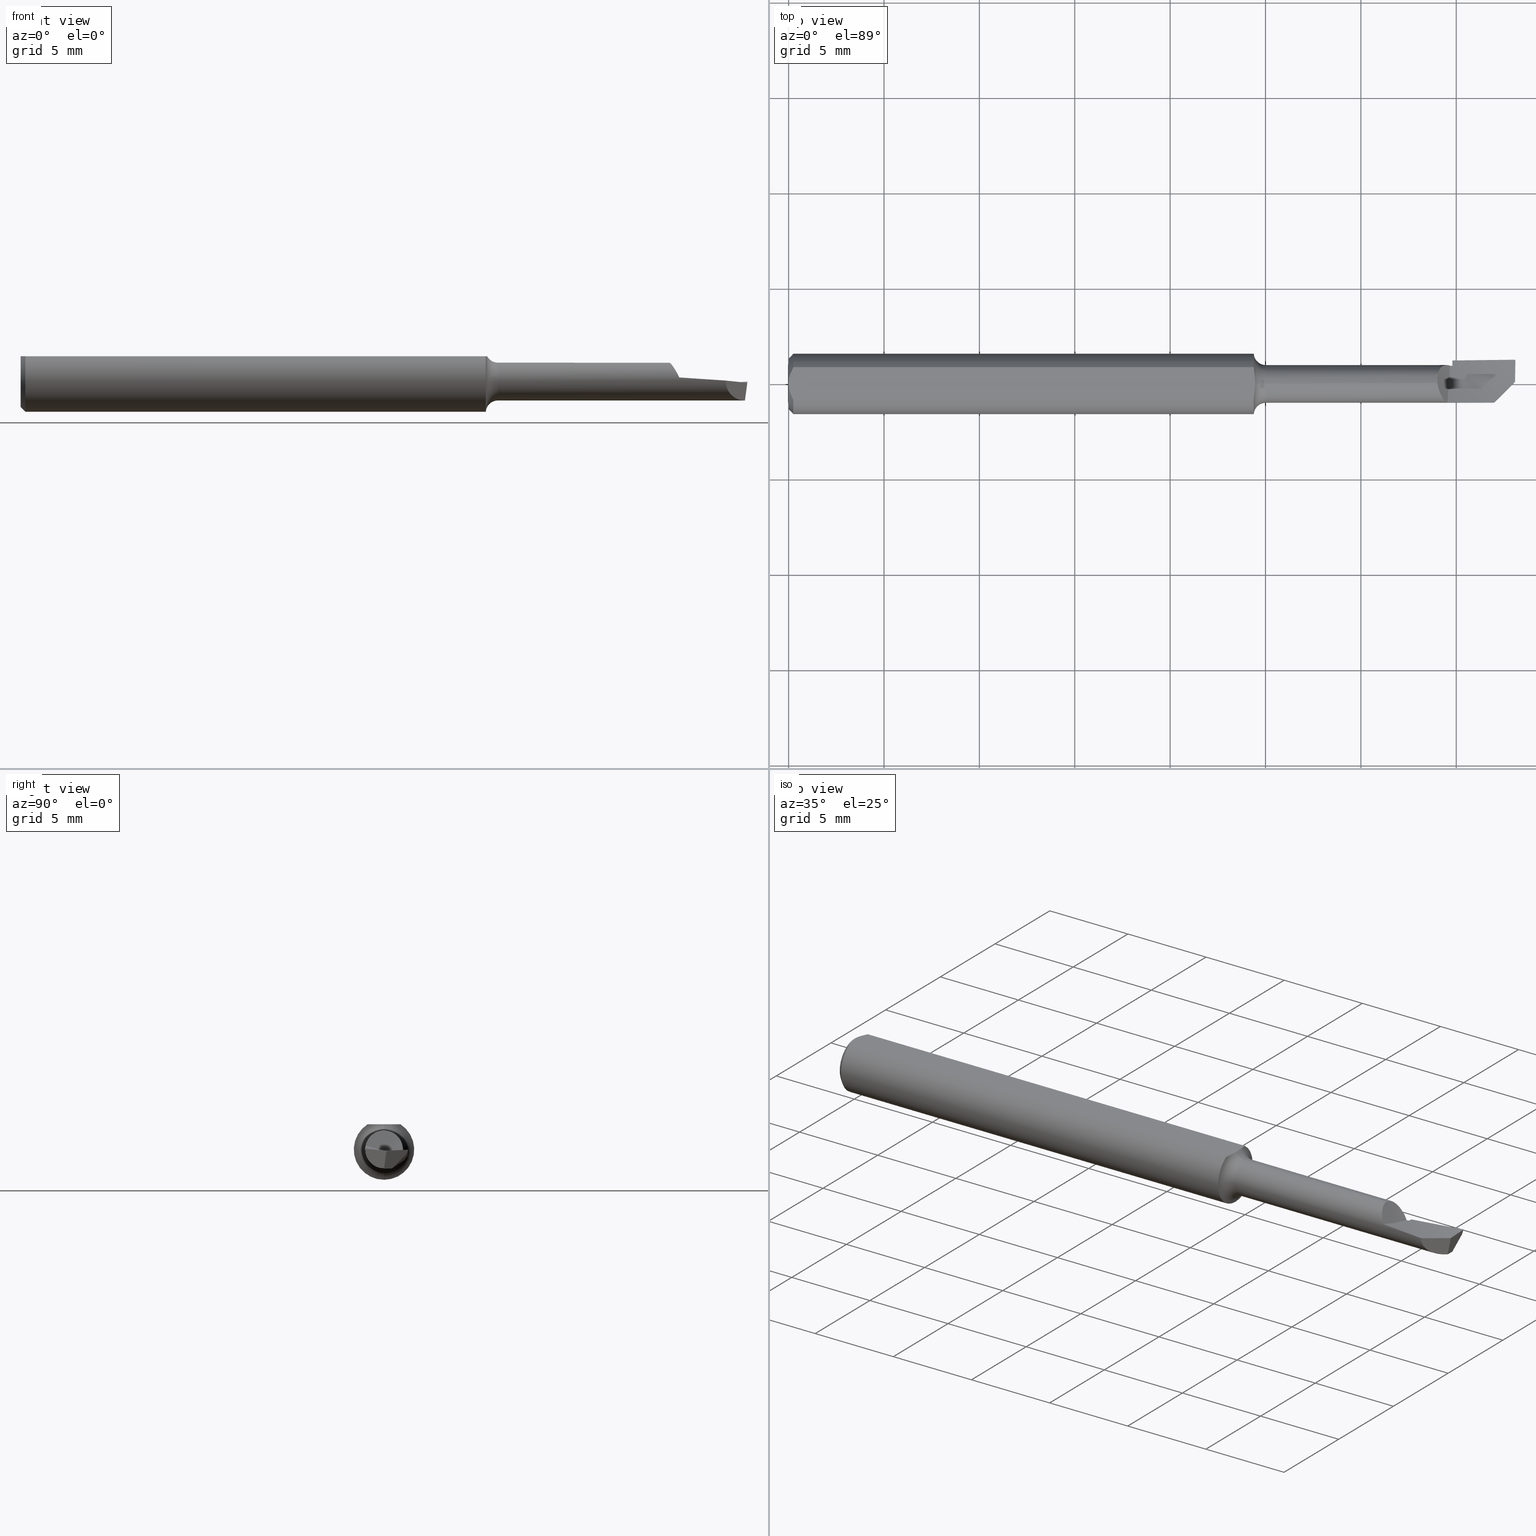
[diagram: canonical four-view strip — front | top / right | iso, engineering-drawing reading convention]
A machine part, canonical four-view strip (front | top / right | iso — engineering-drawing reading convention). The complete STEP part file that produces these views, byte-faithful:
ISO-10303-21;
HEADER;
FILE_DESCRIPTION (( 'STEP AP203' ),
    '1' );
FILE_NAME ('216009-HB90F.STEP',
    '2024-08-12T22:29:56',
    ( '' ),
    ( '' ),
    'SwSTEP 2.0',
    'SolidWorks 2024',
    '' );
FILE_SCHEMA (( 'CONFIG_CONTROL_DESIGN' ));
ENDSEC;

DATA;
#1 = CARTESIAN_POINT ( 'NONE',  ( 1.300000000000000044, 0.000000000000000000, -0.03900000000000006239 ) ) ;
#2 = CARTESIAN_POINT ( 'NONE',  ( 0.7777777777777796775, -0.08446778369049480484, 0.02706893702457546097 ) ) ;
#3 = DIRECTION ( 'NONE',  ( 0.000000000000000000, 0.000000000000000000, 1.000000000000000000 ) ) ;
#4 = ORIENTED_EDGE ( 'NONE', *, *, #616, .F. ) ;
#5 = CARTESIAN_POINT ( 'NONE',  ( 1.499364190464508972, 0.04798599545525998600, -0.005034916760758786219 ) ) ;
#6 = ADVANCED_FACE ( 'NONE', ( #634 ), #22, .T. ) ;
#7 = ORIENTED_EDGE ( 'NONE', *, *, #604, .T. ) ;
#8 = EDGE_CURVE ( 'NONE', #192, #312, #804, .T. ) ;
#9 = DIMENSIONAL_EXPONENTS ( 1.000000000000000000, 0.000000000000000000, 0.000000000000000000, 0.000000000000000000, 0.000000000000000000, 0.000000000000000000, 0.000000000000000000 ) ;
#10 = CARTESIAN_POINT ( 'NONE',  ( 1.455543029920441711, -0.03894455628052481688, 0.002078830467602190302 ) ) ;
#11 = CARTESIAN_POINT ( 'NONE',  ( 1.499042341873564332, 0.04696043515979193145, -0.007583174826046093324 ) ) ;
#12 = ORIENTED_EDGE ( 'NONE', *, *, #441, .F. ) ;
#13 = CARTESIAN_POINT ( 'NONE',  ( 1.500000000000000222, 0.05000000000000000278, 0.000000000000000000 ) ) ;
#14 = CARTESIAN_POINT ( 'NONE',  ( 0.000000000000000000, 0.000000000000000000, 0.000000000000000000 ) ) ;
#15 = PRODUCT_DEFINITION ( 'UNKNOWN', '', #620, #173 ) ;
#16 = ADVANCED_FACE ( 'NONE', ( #647 ), #699, .T. ) ;
#17 = CARTESIAN_POINT ( 'NONE',  ( 1.411647286080403019, 0.01288141224813498659, -0.03900000000000003464 ) ) ;
#18 = CARTESIAN_POINT ( 'NONE',  ( 1.359468201883221816, -0.04182939089600964250, 0.009847690964938636896 ) ) ;
#19 = CARTESIAN_POINT ( 'NONE',  ( -0.6666666666666620777, 0.08446778369049480484, -0.02706893702457545056 ) ) ;
#20 = B_SPLINE_CURVE_WITH_KNOTS ( 'NONE', 3,
 ( #286, #592, #512, #215 ),
 .UNSPECIFIED., .F., .F.,
 ( 4, 4 ),
 ( 4.337015892788707166E-19, 0.001148449799116577118 ),
 .UNSPECIFIED. ) ;
#21 = CARTESIAN_POINT ( 'NONE',  ( 0.01000000000000000021, 0.03386738844375217911, 0.05234999999999997988 ) ) ;
#22 = CYLINDRICAL_SURFACE ( 'NONE', #112, 0.03899999999999996525 ) ;
#23 = CARTESIAN_POINT ( 'NONE',  ( 0.4682539682539705872, -0.03647374260270008078, -0.02969787187380758253 ) ) ;
#24 =( NAMED_UNIT ( * ) SI_UNIT ( $, .STERADIAN. ) SOLID_ANGLE_UNIT ( ) );
#25 = CARTESIAN_POINT ( 'NONE',  ( 1.367625188500449340, 0.03771467856751491848, -0.009931221698997990191 ) ) ;
#26 = ADVANCED_BREP_SHAPE_REPRESENTATION ( '216009-HB90F', ( #254, #45 ), #539 ) ;
#27 = DIRECTION ( 'NONE',  ( -1.000000000000000000, -0.000000000000000000, -0.000000000000000000 ) ) ;
#28 = CIRCLE ( 'NONE', #125, 0.05234999999999996600 ) ;
#29 = CARTESIAN_POINT ( 'NONE',  ( 0.9602575845444997205, -0.02821516177202924164, 0.05234999999999998682 ) ) ;
#30 = CARTESIAN_POINT ( 'NONE',  ( 1.494920729777069690, 0.01671314237762522650, -0.03900000000000002076 ) ) ;
#31 = AXIS2_PLACEMENT_3D ( 'NONE', #13, #200, #688 ) ;
#32 = CARTESIAN_POINT ( 'NONE',  ( 1.276388888888889461, 0.1077317451445226337, -0.03349725798169324309 ) ) ;
#33 = CARTESIAN_POINT ( 'NONE',  ( 1.348942833608258063, -0.02754147477447862688, 0.02762902050987929570 ) ) ;
#34 =( BOUNDED_CURVE ( )  B_SPLINE_CURVE ( 1, ( #292, #109 ),
 .UNSPECIFIED., .F., .T. ) 
 B_SPLINE_CURVE_WITH_KNOTS ( ( 2, 2 ),
 ( 0.001724731492398852125, 0.002598886121437397369 ),
 .UNSPECIFIED. ) 
 CURVE ( )  GEOMETRIC_REPRESENTATION_ITEM ( )  RATIONAL_B_SPLINE_CURVE ( ( 0.9882916646871111599, 0.9882916646871111599 ) ) 
 REPRESENTATION_ITEM ( '' )  );
#35 = ORIENTED_EDGE ( 'NONE', *, *, #518, .F. ) ;
#36 = CARTESIAN_POINT ( 'NONE',  ( 0.05555555555555891090, -0.04595973774164850700, 0.009999999999999993269 ) ) ;
#37 = DIRECTION ( 'NONE',  ( 0.000000000000000000, -1.000000000000000000, 0.000000000000000000 ) ) ;
#38 = CARTESIAN_POINT ( 'NONE',  ( 0.9841269841269852936, 0.01121261792240686554, -0.04692360296771245359 ) ) ;
#39 = ORIENTED_EDGE ( 'NONE', *, *, #706, .T. ) ;
#40 = CARTESIAN_POINT ( 'NONE',  ( 0.01000000000000000021, 0.000000000000000000, -0.06235000000000000264 ) ) ;
#41 = CIRCLE ( 'NONE', #139, 0.02500000000000007425 ) ;
#42 = CARTESIAN_POINT ( 'NONE',  ( 1.396825396825397192, 0.04367730299774701119, -0.02049001022421396631 ) ) ;
#43 = EDGE_CURVE ( 'NONE', #69, #353, #779, .T. ) ;
#44 = ORIENTED_EDGE ( 'NONE', *, *, #176, .F. ) ;
#45 = AXIS2_PLACEMENT_3D ( 'NONE', #570, #713, #214 ) ;
#46 = CYLINDRICAL_SURFACE ( 'NONE', #782, 0.05000000000000000278 ) ;
#47 = CARTESIAN_POINT ( 'NONE',  ( 0.3650793650793676681, -0.04325208806117143007, -0.02137297813815528316 ) ) ;
#48 = ORIENTED_EDGE ( 'NONE', *, *, #258, .T. ) ;
#49 = CARTESIAN_POINT ( 'NONE',  ( 0.9600545094255498180, 0.000000000000000000, 0.000000000000000000 ) ) ;
#50 = EDGE_CURVE ( 'NONE', #691, #785, #335, .T. ) ;
#51 = VERTEX_POINT ( 'NONE', #581 ) ;
#52 = CC_DESIGN_PERSON_AND_ORGANIZATION_ASSIGNMENT ( #611, #422, ( #435 ) ) ;
#53 = LINE ( 'NONE', #358, #384 ) ;
#54 = AXIS2_PLACEMENT_3D ( 'NONE', #175, #409, #233 ) ;
#55 = ORIENTED_EDGE ( 'NONE', *, *, #575, .F. ) ;
#56 = CARTESIAN_POINT ( 'NONE',  ( 0.004671770759546980435, 0.02323517832780102113, 0.05234999999999997988 ) ) ;
#57 = PERSON_AND_ORGANIZATION_ROLE ( 'design_supplier' ) ;
#58 = EDGE_LOOP ( 'NONE', ( #242, #781, #83, #212, #548, #35 ) ) ;
#59 = FACE_OUTER_BOUND ( 'NONE', #306, .T. ) ;
#60 = CARTESIAN_POINT ( 'NONE',  ( 0.7777777777777796775, -0.01025716863272553916, -0.04714167803319291306 ) ) ;
#61 = VERTEX_POINT ( 'NONE', #503 ) ;
#62 = PLANE ( 'NONE',  #274 ) ;
#63 = CARTESIAN_POINT ( 'NONE',  ( 0.9841269841269852936, -0.08784761505601204612, -0.01226092827625134725 ) ) ;
#64 = CARTESIAN_POINT ( 'NONE',  ( -0.6666666666666620777, -9.421056550786470974E-18, 0.05128584316362769929 ) ) ;
#65 = ORIENTED_EDGE ( 'NONE', *, *, #316, .T. ) ;
#66 = AXIS2_PLACEMENT_3D ( 'NONE', #664, #791, #294 ) ;
#67 = CARTESIAN_POINT ( 'NONE',  ( 1.339000000000000190, 0.02294468230308690376, 0.03307793068781555296 ) ) ;
#68 = CARTESIAN_POINT ( 'NONE',  ( 1.351412121819423273, 0.03746960626762058100, 0.01164643385784336696 ) ) ;
#69 = VERTEX_POINT ( 'NONE', #757 ) ;
#70 = CARTESIAN_POINT ( 'NONE',  ( 1.052777777777778923, -0.07217458505112368805, 0.08671230868149314153 ) ) ;
#71 = SHAPE_DEFINITION_REPRESENTATION ( #81, #26 ) ;
#72 = DIRECTION ( 'NONE',  ( -1.000000000000000000, -0.000000000000000000, -0.000000000000000000 ) ) ;
#73 = ORIENTED_EDGE ( 'NONE', *, *, #719, .F. ) ;
#74 = CARTESIAN_POINT ( 'NONE',  ( 1.455543029920441711, -0.03894455628052481688, 0.002078830467602190302 ) ) ;
#75 = CARTESIAN_POINT ( 'NONE',  ( 1.293650793650794162, -0.05950713062688500754, -0.06274448060681807326 ) ) ;
#76 = CARTESIAN_POINT ( 'NONE',  ( 1.500000000000000222, 0.05000000000000000278, 0.000000000000000000 ) ) ;
#77 = ORIENTED_EDGE ( 'NONE', *, *, #275, .T. ) ;
#78 = VECTOR ( 'NONE', #773, 39.37007874015748143 ) ;
#79 = CARTESIAN_POINT ( 'NONE',  ( 0.01000000000000000021, -0.03386738844375219298, 0.05234999999999997988 ) ) ;
#80 = PLANE ( 'NONE',  #725 ) ;
#81 = PRODUCT_DEFINITION_SHAPE ( 'NONE', 'NONE',  #15 ) ;
#82 = CIRCLE ( 'NONE', #115, 0.05000000000000000278 ) ;
#83 = ORIENTED_EDGE ( 'NONE', *, *, #191, .T. ) ;
#84 = CARTESIAN_POINT ( 'NONE',  ( 1.500000000000000222, 0.1123499999999999360, 0.01027972296205029862 ) ) ;
#85 = CARTESIAN_POINT ( 'NONE',  ( 1.344174711610352846, 0.03089781670961821297, 0.02392558103220153096 ) ) ;
#86 = CARTESIAN_POINT ( 'NONE',  ( 0.9609995429692419489, 0.02257840940120946910, 0.05234999999999997988 ) ) ;
#87 = B_SPLINE_CURVE_WITH_KNOTS ( 'NONE', 3,
 ( #479, #733, #56, #111, #674, #730 ),
 .UNSPECIFIED., .F., .F.,
 ( 4, 2, 4 ),
 ( 0.0009229516234080545421, 0.001371626545108214999, 0.001820301466808375672 ),
 .UNSPECIFIED. ) ;
#88 = DIRECTION ( 'NONE',  ( -1.000000000000000000, 0.000000000000000000, -0.000000000000000000 ) ) ;
#89 = PERSON_AND_ORGANIZATION_ROLE ( 'creator' ) ;
#90 = LINE ( 'NONE', #40, #78 ) ;
#91 = ORIENTED_EDGE ( 'NONE', *, *, #179, .T. ) ;
#92 = PLANE ( 'NONE',  #324 ) ;
#93 = COORDINATED_UNIVERSAL_TIME_OFFSET ( 8, 0, .BEHIND. ) ;
#94 = DIRECTION ( 'NONE',  ( -0.7071067811865464625, 0.7071067811865486830, 0.000000000000000000 ) ) ;
#95 = DIRECTION ( 'NONE',  ( 0.000000000000000000, 0.000000000000000000, 1.000000000000000000 ) ) ;
#96 = CARTESIAN_POINT ( 'NONE',  ( 0.2619047619047648601, -0.04574713027336072685, -0.01093149418118462800 ) ) ;
#97 = PERSON_AND_ORGANIZATION ( #343, #650 ) ;
#98 = CARTESIAN_POINT ( 'NONE',  ( 0.9600545094255498180, 0.03386738844375217911, 0.05234999999999997988 ) ) ;
#99 = B_SPLINE_CURVE_WITH_KNOTS ( 'NONE', 3,
 ( #778, #102, #345, #585, #105, #33, #450, #595, #522, #223, #461, #506, #388, #210, #718, #165, #401, #654, #526, #704, #464, #147, #729, #472, #801, #412 ),
 .UNSPECIFIED., .F., .F.,
 ( 4, 2, 2, 2, 1, 1, 2, 2, 2, 2, 2, 2, 2, 4 ),
 ( 0.000000000000000000, 0.2500000000000230371, 0.3750000000000375810, 0.4375000000000414113, 0.4687500000000434652, 0.4843750000000484057, 0.4921875000000470179, 0.5000000000000456302, 0.7500000000000264233, 0.8750000000000148770, 0.9375000000000074385, 0.9687500000000037748, 0.9843750000000018874, 1.000000000000000000 ),
 .UNSPECIFIED. ) ;
#100 = CARTESIAN_POINT ( 'NONE',  ( -1.079365079365073754, 0.04009688679024191876, 0.03197620019224832466 ) ) ;
#101 = CC_DESIGN_PERSON_AND_ORGANIZATION_ASSIGNMENT ( #146, #89, ( #15 ) ) ;
#102 = CARTESIAN_POINT ( 'NONE',  ( 1.356858497034448385, -0.03682547741979771971, 0.01401220220135346826 ) ) ;
#103 = EDGE_CURVE ( 'NONE', #361, #723, #793, .T. ) ;
#104 = VERTEX_POINT ( 'NONE', #694 ) ;
#105 = CARTESIAN_POINT ( 'NONE',  ( 1.350234058151253302, -0.02950298695208067659, 0.02557647726446427711 ) ) ;
#106 = CARTESIAN_POINT ( 'NONE',  ( 0.7777777777777796775, 3.140352183595491352E-18, -0.05128584316362769929 ) ) ;
#107 = VERTEX_POINT ( 'NONE', #376 ) ;
#108 = CARTESIAN_POINT ( 'NONE',  ( 0.000000000000000000, 0.000000000000000000, 0.000000000000000000 ) ) ;
#109 = CARTESIAN_POINT ( 'NONE',  ( 1.370000000000000329, 0.04135515867258438699, -0.02240643533555659525 ) ) ;
#110 = ORIENTED_EDGE ( 'NONE', *, *, #787, .F. ) ;
#111 = CARTESIAN_POINT ( 'NONE',  ( 0.001063697276021673783, 0.01189177144351694256, 0.05234999999999998682 ) ) ;
#112 = AXIS2_PLACEMENT_3D ( 'NONE', #394, #455, #442 ) ;
#113 =( BOUNDED_CURVE ( )  B_SPLINE_CURVE ( 3, ( #480, #590, #596, #722 ),
 .UNSPECIFIED., .F., .F. ) 
 B_SPLINE_CURVE_WITH_KNOTS ( ( 4, 4 ),
 ( 0.002310908876997767349, 0.002590621858848661443 ),
 .UNSPECIFIED. ) 
 CURVE ( )  GEOMETRIC_REPRESENTATION_ITEM ( )  RATIONAL_B_SPLINE_CURVE ( ( 0.9794670570133057197, 0.9797490964155690651, 0.9800711465642302223, 0.9804332074592890800 ) ) 
 REPRESENTATION_ITEM ( '' )  );
#114 = DIRECTION ( 'NONE',  ( -1.000000000000000000, -0.000000000000000000, -0.000000000000000000 ) ) ;
#115 = AXIS2_PLACEMENT_3D ( 'NONE', #319, #438, #692 ) ;
#116 = CARTESIAN_POINT ( 'NONE',  ( -1.182539682539676562, 0.04504844339512095730, 0.02169418695587791920 ) ) ;
#117 = ORIENTED_EDGE ( 'NONE', *, *, #787, .T. ) ;
#118 = B_SPLINE_CURVE_WITH_KNOTS ( 'NONE', 3,
 ( #483, #374, #264, #758, #742, #79 ),
 .UNSPECIFIED., .F., .F.,
 ( 4, 2, 4 ),
 ( 0.001820301466808375672, 0.002269751589838321822, 0.002719201712868267538 ),
 .UNSPECIFIED. ) ;
#119 = DIRECTION ( 'NONE',  ( -1.000000000000000000, -0.000000000000000000, -0.000000000000000000 ) ) ;
#120 = CARTESIAN_POINT ( 'NONE',  ( 0.8809523809523824855, 0.01112604669781572242, -0.04874639560909118513 ) ) ;
#121 = ORIENTED_EDGE ( 'NONE', *, *, #186, .T. ) ;
#122 = EDGE_CURVE ( 'NONE', #312, #795, #473, .T. ) ;
#123 = PLANE ( 'NONE',  #31 ) ;
#124 = CARTESIAN_POINT ( 'NONE',  ( 1.348926865319055368, 0.03576396719650012240, 0.01555458269623831609 ) ) ;
#125 = AXIS2_PLACEMENT_3D ( 'NONE', #535, #119, #356 ) ;
#126 = ORIENTED_EDGE ( 'NONE', *, *, #50, .F. ) ;
#127 = CARTESIAN_POINT ( 'NONE',  ( 1.276388888888889461, -0.09986398581076323666, 0.05249170927074218312 ) ) ;
#128 = EDGE_CURVE ( 'NONE', #285, #475, #417, .T. ) ;
#129 = CARTESIAN_POINT ( 'NONE',  ( 1.370000000000000329, 0.04135515867258438699, -0.02240643533555659525 ) ) ;
#130 = VECTOR ( 'NONE', #577, 39.37007874015748143 ) ;
#131 = EDGE_LOOP ( 'NONE', ( #800, #749, #357, #609, #594, #525 ) ) ;
#132 = CARTESIAN_POINT ( 'NONE',  ( 1.370000000000000329, 0.04135515867258438699, -0.02240643533555659525 ) ) ;
#133 = DIRECTION ( 'NONE',  ( 1.000000000000000000, 0.000000000000000000, 0.000000000000000000 ) ) ;
#134 = DIRECTION ( 'NONE',  ( 0.000000000000000000, 0.000000000000000000, 1.000000000000000000 ) ) ;
#135 = FACE_OUTER_BOUND ( 'NONE', #536, .T. ) ;
#136 = CARTESIAN_POINT ( 'NONE',  ( 0.6746031746031765364, -0.07441292776309291201, 0.04405320219676703980 ) ) ;
#137 = CARTESIAN_POINT ( 'NONE',  ( -0.2539682539682499574, -0.03046160798427212726, 0.03741173285425204026 ) ) ;
#138 = ORIENTED_EDGE ( 'NONE', *, *, #128, .T. ) ;
#139 = AXIS2_PLACEMENT_3D ( 'NONE', #362, #289, #671 ) ;
#140 = CARTESIAN_POINT ( 'NONE',  ( 1.454273148360252899, -0.04021443784071346284, -0.02171097570519750844 ) ) ;
#141 =( NAMED_UNIT ( * ) PLANE_ANGLE_UNIT ( ) SI_UNIT ( $, .RADIAN. ) );
#142 = CARTESIAN_POINT ( 'NONE',  ( -0.04761904761904422329, -0.04367730299774701119, 0.02049001022421396631 ) ) ;
#143 = CC_DESIGN_SECURITY_CLASSIFICATION ( #435, ( #620 ) ) ;
#144 = ORIENTED_EDGE ( 'NONE', *, *, #617, .T. ) ;
#145 = CARTESIAN_POINT ( 'NONE',  ( 1.500000000000000000, 0.03809952085550591394, -0.006842201710414005413 ) ) ;
#146 = PERSON_AND_ORGANIZATION ( #343, #650 ) ;
#147 = CARTESIAN_POINT ( 'NONE',  ( 1.339205271438349554, 0.0002329044989316818358, 0.03900015130222530407 ) ) ;
#148 =( BOUNDED_SURFACE ( )  B_SPLINE_SURFACE ( 1, 2, ( 
 ( #272, #653, #707, #635, #701, #217, #326, #460, #395, #572, #23, #716, #96, #267, #36, #456, #510, #504, #766, #712, #341, #587, #213, #150, #281, #391, #643, #197, #675 ),
 ( #612, #628, #75, #564, #439, #63, #551, #2, #136, #378, #248, #189, #484, #743, #427, #679, #365, #431, #521, #342, #760, #19, #164, #768, #697, #573, #392, #588, #516 ) ),
 .UNSPECIFIED., .F., .F., .T. ) 
 B_SPLINE_SURFACE_WITH_KNOTS ( ( 2, 2 ),
 ( 3, 2, 2, 2, 2, 2, 2, 2, 2, 2, 2, 2, 2, 2, 3 ),
 ( 0.000000000000000000, 1.000000000000000000 ),
 ( 0.000000000000000000, 0.07142857142857142461, 0.1428571428571428492, 0.2142857142857142738, 0.2857142857142856984, 0.3571428571428571508, 0.4285714285714285476, 0.5000000000000000000, 0.5714285714285713969, 0.6428571428571429047, 0.7142857142857143016, 0.7857142857142856984, 0.8571428571428570953, 0.9285714285714286031, 1.000000000000000000 ),
 .UNSPECIFIED. ) 
 GEOMETRIC_REPRESENTATION_ITEM ( )  RATIONAL_B_SPLINE_SURFACE ( (
 ( 1.000000000000000000, 0.9749279121818236193, 1.000000000000000000, 0.9749279121818236193, 1.000000000000000000, 0.9749279121818236193, 1.000000000000000000, 0.9749279121818236193, 1.000000000000000000, 0.9749279121818236193, 1.000000000000000000, 0.9749279121818236193, 1.000000000000000000, 0.9749279121818236193, 1.000000000000000000, 0.9749279121818236193, 1.000000000000000000, 0.9749279121818236193, 1.000000000000000000, 0.9749279121818236193, 1.000000000000000000, 0.9749279121818236193, 1.000000000000000000, 0.9749279121818236193, 1.000000000000000000, 0.9749279121818236193, 1.000000000000000000, 0.9749279121818236193, 1.000000000000000000),
 ( 1.000000000000000000, 0.9749279121818236193, 1.000000000000000000, 0.9749279121818236193, 1.000000000000000000, 0.9749279121818236193, 1.000000000000000000, 0.9749279121818236193, 1.000000000000000000, 0.9749279121818236193, 1.000000000000000000, 0.9749279121818236193, 1.000000000000000000, 0.9749279121818236193, 1.000000000000000000, 0.9749279121818236193, 1.000000000000000000, 0.9749279121818236193, 1.000000000000000000, 0.9749279121818236193, 1.000000000000000000, 0.9749279121818236193, 1.000000000000000000, 0.9749279121818236193, 1.000000000000000000, 0.9749279121818236193, 1.000000000000000000, 0.9749279121818236193, 1.000000000000000000) ) ) 
 REPRESENTATION_ITEM ( '' )  SURFACE ( )  );
#149 = DIRECTION ( 'NONE',  ( -0.7071067811865486830, -0.7071067811865464625, -1.834293824427115578E-15 ) ) ;
#150 = CARTESIAN_POINT ( 'NONE',  ( -0.8730158730158678049, 0.02969539714422872456, 0.03802276560945988537 ) ) ;
#151 = PERSON_AND_ORGANIZATION ( #343, #650 ) ;
#152 = CARTESIAN_POINT ( 'NONE',  ( 1.370000000000000329, 0.03900000000000009709, -0.03899999999999996525 ) ) ;
#153 = B_SPLINE_CURVE_WITH_KNOTS ( 'NONE', 3,
 ( #276, #514, #770, #216 ),
 .UNSPECIFIED., .F., .F.,
 ( 4, 4 ),
 ( 2.505178387967792883E-05, 0.001601124138346843306 ),
 .UNSPECIFIED. ) ;
#154 = EDGE_CURVE ( 'NONE', #107, #491, #662, .T. ) ;
#155 = ORIENTED_EDGE ( 'NONE', *, *, #616, .T. ) ;
#156 = EDGE_CURVE ( 'NONE', #734, #667, #153, .T. ) ;
#157 = CARTESIAN_POINT ( 'NONE',  ( 1.407756143416589723, -0.03877000625809923218, 0.005348829285717054439 ) ) ;
#158 = AXIS2_PLACEMENT_3D ( 'NONE', #108, #243, #538 ) ;
#159 =( LENGTH_UNIT ( ) NAMED_UNIT ( * ) SI_UNIT ( $, .METRE. ) );
#160 = CARTESIAN_POINT ( 'NONE',  ( 0.9850000000000004308, 0.000000000000000000, 0.000000000000000000 ) ) ;
#161 = CARTESIAN_POINT ( 'NONE',  ( 0.5714285714285736173, -0.02225209339563144137, -0.04620694805455466403 ) ) ;
#162 = CC_DESIGN_APPROVAL ( #313, ( #620 ) ) ;
#163 = CARTESIAN_POINT ( 'NONE',  ( 1.052777777777778923, 0.02210226232920658659, -0.03177859678456645964 ) ) ;
#164 = CARTESIAN_POINT ( 'NONE',  ( -0.7698412698412646638, 0.07441292776309291201, -0.04405320219676703286 ) ) ;
#165 = CARTESIAN_POINT ( 'NONE',  ( 1.341113371731331716, -0.009119071672143682153, 0.03798957849328540859 ) ) ;
#166 = CARTESIAN_POINT ( 'NONE',  ( 1.087301587301588324, 0.03117449009293668180, -0.03909157412340149435 ) ) ;
#167 = LINE ( 'NONE', #152, #495 ) ;
#168 = ADVANCED_FACE ( 'NONE', ( #280 ), #711, .T. ) ;
#169 = CARTESIAN_POINT ( 'NONE',  ( -0.8730158730158678049, 0.02225209339563143790, 0.04620694805455467097 ) ) ;
#170 = ORIENTED_EDGE ( 'NONE', *, *, #530, .F. ) ;
#171 = CARTESIAN_POINT ( 'NONE',  ( 1.496178134510733448, 0.02653297950056673210, -0.02945756494393632699 ) ) ;
#172 = AXIS2_PLACEMENT_3D ( 'NONE', #451, #576, #266 ) ;
#173 = DESIGN_CONTEXT ( 'detailed design', #668, 'design' ) ;
#174 = ORIENTED_EDGE ( 'NONE', *, *, #191, .F. ) ;
#175 = CARTESIAN_POINT ( 'NONE',  ( 0.000000000000000000, 0.000000000000000000, 0.000000000000000000 ) ) ;
#176 = EDGE_CURVE ( 'NONE', #463, #104, #618, .T. ) ;
#177 = ORIENTED_EDGE ( 'NONE', *, *, #731, .F. ) ;
#178 = CARTESIAN_POINT ( 'NONE',  ( 0.01000000000000000021, 0.000000000000000000, -0.06235000000000000264 ) ) ;
#179 = EDGE_CURVE ( 'NONE', #298, #381, #665, .T. ) ;
#180 = CARTESIAN_POINT ( 'NONE',  ( -0.5634920634920589366, -0.01112604669781572936, 0.04874639560909118513 ) ) ;
#181 = AXIS2_PLACEMENT_3D ( 'NONE', #613, #185, #3 ) ;
#182 = EDGE_LOOP ( 'NONE', ( #187, #232, #437, #12, #803 ) ) ;
#183 = CC_DESIGN_PERSON_AND_ORGANIZATION_ASSIGNMENT ( #151, #708, ( #685 ) ) ;
#184 = CARTESIAN_POINT ( 'NONE',  ( 1.494920729777069690, 0.01671314237762522650, -0.03900000000000002076 ) ) ;
#185 = DIRECTION ( 'NONE',  ( -1.000000000000000000, -0.000000000000000000, -0.000000000000000000 ) ) ;
#186 = EDGE_CURVE ( 'NONE', #61, #51, #531, .T. ) ;
#187 = ORIENTED_EDGE ( 'NONE', *, *, #575, .T. ) ;
#188 = FACE_OUTER_BOUND ( 'NONE', #364, .T. ) ;
#189 = CARTESIAN_POINT ( 'NONE',  ( 0.3650793650793676681, -0.03150145455387539511, 0.08291677872550751172 ) ) ;
#190 = DIRECTION ( 'NONE',  ( 1.000000000000000000, 0.000000000000000000, 0.000000000000000000 ) ) ;
#191 = EDGE_CURVE ( 'NONE', #69, #318, #113, .T. ) ;
#192 = VERTEX_POINT ( 'NONE', #532 ) ;
#193 = CARTESIAN_POINT ( 'NONE',  ( 1.494487586200966334, -3.414809992080329023E-17, -0.03900000000000006239 ) ) ;
#194 = CARTESIAN_POINT ( 'NONE',  ( -0.3571428571428530430, -0.02083711295333949554, 0.04216766791098225386 ) ) ;
#195 = ORIENTED_EDGE ( 'NONE', *, *, #332, .T. ) ;
#196 = DIRECTION ( 'NONE',  ( -1.000000000000000000, -0.000000000000000000, -0.000000000000000000 ) ) ;
#197 = CARTESIAN_POINT ( 'NONE',  ( -1.285714285714279148, 0.04824217248555000281, 0.0004900102242139721832 ) ) ;
#198 = CARTESIAN_POINT ( 'NONE',  ( 1.347900295454751429, 0.03496707430805499200, 0.01729189934045285981 ) ) ;
#199 = ORIENTED_EDGE ( 'NONE', *, *, #524, .T. ) ;
#200 = DIRECTION ( 'NONE',  ( -0.9925083585251990304, 0.008661489226063853047, 0.1218693434051474900 ) ) ;
#201 = CARTESIAN_POINT ( 'NONE',  ( 1.339000000000000190, 0.01646687223058066266, 0.03535310621348184551 ) ) ;
#202 = B_SPLINE_CURVE_WITH_KNOTS ( 'NONE', 3,
 ( #579, #651, #641, #721, #29, #397 ),
 .UNSPECIFIED., .F., .F.,
 ( 4, 2, 4 ),
 ( 2.418285421185417772E-20, 0.0004309660162680474223, 0.0008619320325360948446 ),
 .UNSPECIFIED. ) ;
#203 = ORIENTED_EDGE ( 'NONE', *, *, #446, .T. ) ;
#204 = CALENDAR_DATE ( 2024, 12, 8 ) ;
#205 = CARTESIAN_POINT ( 'NONE',  ( 1.347411736170987862, 0.03453294355683568517, 0.01813481686020786826 ) ) ;
#206 = CARTESIAN_POINT ( 'NONE',  ( 0.9850000000000004308, 0.000000000000000000, 0.000000000000000000 ) ) ;
#207 = VECTOR ( 'NONE', #72, 39.37007874015748143 ) ;
#208 = CARTESIAN_POINT ( 'NONE',  ( 1.494487586200966334, -3.414809992080329023E-17, -0.03900000000000006239 ) ) ;
#209 = PERSON_AND_ORGANIZATION ( #343, #650 ) ;
#210 = CARTESIAN_POINT ( 'NONE',  ( 1.344890609958596883, -0.02026134698556149999, 0.03373142848808049349 ) ) ;
#211 = ADVANCED_FACE ( 'NONE', ( #249 ), #334, .T. ) ;
#212 = ORIENTED_EDGE ( 'NONE', *, *, #658, .T. ) ;
#213 = CARTESIAN_POINT ( 'NONE',  ( -0.7698412698412646638, 0.01997628288847712666, 0.04258222182132639921 ) ) ;
#214 = DIRECTION ( 'NONE',  ( 1.000000000000000000, 0.000000000000000000, 0.000000000000000000 ) ) ;
#215 = CARTESIAN_POINT ( 'NONE',  ( 1.499300021147466966, 0.004812434946501276643, -0.002489085815930363460 ) ) ;
#216 = CARTESIAN_POINT ( 'NONE',  ( 1.455543029920441711, -0.03894455628052481688, 0.002078830467602190302 ) ) ;
#217 = CARTESIAN_POINT ( 'NONE',  ( 0.9841269841269852936, 0.01121261792240686554, -0.04692360296771245359 ) ) ;
#218 = APPROVAL_DATE_TIME ( #703, #426 ) ;
#219 = DIRECTION ( 'NONE',  ( -1.000000000000000000, -0.000000000000000000, -0.000000000000000000 ) ) ;
#220 = ORIENTED_EDGE ( 'NONE', *, *, #759, .F. ) ;
#221 = CARTESIAN_POINT ( 'NONE',  ( 1.052777777777778923, 0.08671230868149340520, -0.07217458505112374356 ) ) ;
#222 = APPROVAL_ROLE ( '' ) ;
#223 = CARTESIAN_POINT ( 'NONE',  ( 1.347379489371238304, -0.02489170957558365163, 0.03002457187349875933 ) ) ;
#224 = CARTESIAN_POINT ( 'NONE',  ( 0.2619047619047648601, -0.04504844339512095730, -0.02169418695587791227 ) ) ;
#225 = ORIENTED_EDGE ( 'NONE', *, *, #658, .F. ) ;
#226 = CARTESIAN_POINT ( 'NONE',  ( 1.300000000000000044, 0.000000000000000000, -0.03900000000000006239 ) ) ;
#227 = CARTESIAN_POINT ( 'NONE',  ( 0.9841269841269852936, 0.02225209339563144484, -0.04620694805455466403 ) ) ;
#228 = ORIENTED_EDGE ( 'NONE', *, *, #486, .F. ) ;
#229 = DIRECTION ( 'NONE',  ( 1.000000000000000000, 0.000000000000000000, 0.000000000000000000 ) ) ;
#230 = CARTESIAN_POINT ( 'NONE',  ( 1.339000000000000190, 0.01646687223058066266, 0.03535310621348184551 ) ) ;
#231 = B_SPLINE_CURVE_WITH_KNOTS ( 'NONE', 3,
 ( #238, #607, #796, #414 ),
 .UNSPECIFIED., .F., .F.,
 ( 4, 4 ),
 ( 0.000000000000000000, 1.000000000000000000 ),
 .UNSPECIFIED. ) ;
#232 = ORIENTED_EDGE ( 'NONE', *, *, #530, .T. ) ;
#233 = DIRECTION ( 'NONE',  ( 0.000000000000000000, 0.000000000000000000, 1.000000000000000000 ) ) ;
#234 = VECTOR ( 'NONE', #354, 39.37007874015748854 ) ;
#235 = ADVANCED_FACE ( 'NONE', ( #574 ), #80, .F. ) ;
#236 = EDGE_CURVE ( 'NONE', #104, #245, #328, .T. ) ;
#237 = VERTEX_POINT ( 'NONE', #129 ) ;
#238 = CARTESIAN_POINT ( 'NONE',  ( 1.365251084102846013, 0.03767285701591029101, -0.01008741018590872222 ) ) ;
#239 = ORIENTED_EDGE ( 'NONE', *, *, #792, .F. ) ;
#240 = CARTESIAN_POINT ( 'NONE',  ( 1.359695360012820764, -0.03805261051767304392, 0.008543935439261858555 ) ) ;
#241 = COORDINATED_UNIVERSAL_TIME_OFFSET ( 8, 0, .BEHIND. ) ;
#242 = ORIENTED_EDGE ( 'NONE', *, *, #332, .F. ) ;
#243 = DIRECTION ( 'NONE',  ( -1.000000000000000000, -0.000000000000000000, -0.000000000000000000 ) ) ;
#244 = DIRECTION ( 'NONE',  ( 0.000000000000000000, -1.000000000000000000, -1.036675771730518732E-16 ) ) ;
#245 = VERTEX_POINT ( 'NONE', #323 ) ;
#246 = LINE ( 'NONE', #554, #398 ) ;
#247 = DATE_AND_TIME ( #546, #262 ) ;
#248 = CARTESIAN_POINT ( 'NONE',  ( 0.4682539682539705872, -0.04792976319478321756, 0.07197712304723306864 ) ) ;
#249 = FACE_OUTER_BOUND ( 'NONE', #687, .T. ) ;
#250 = ORIENTED_EDGE ( 'NONE', *, *, #419, .F. ) ;
#251 = CARTESIAN_POINT ( 'NONE',  ( 1.494777405608827658, 0.0002898194078612348823, -0.03900000000000006239 ) ) ;
#252 = DATE_TIME_ROLE ( 'classification_date' ) ;
#253 = CARTESIAN_POINT ( 'NONE',  ( -0.9761904761904703909, 0.03647374260270008078, 0.02969787187380758253 ) ) ;
#254 = MANIFOLD_SOLID_BREP ( 'Flat', #271 ) ;
#255 = ORIENTED_EDGE ( 'NONE', *, *, #543, .F. ) ;
#256 = CARTESIAN_POINT ( 'NONE',  ( 1.499300021147466966, 0.004812434946501276643, -0.002489085815930363460 ) ) ;
#257 = CARTESIAN_POINT ( 'NONE',  ( -0.4603174603174559620, -0.01121261792240686901, 0.04692360296771245359 ) ) ;
#258 = EDGE_CURVE ( 'NONE', #325, #69, #614, .T. ) ;
#259 = ORIENTED_EDGE ( 'NONE', *, *, #236, .F. ) ;
#260 = CARTESIAN_POINT ( 'NONE',  ( 1.370000000000000329, 0.04135515867258438699, -0.02240643533555659525 ) ) ;
#261 = CARTESIAN_POINT ( 'NONE',  ( 1.343191034718544286, 0.02934196286333455236, 0.02580159050824371025 ) ) ;
#262 = LOCAL_TIME ( 15, 29, 56.00000000000000000, #241 ) ;
#263 = CARTESIAN_POINT ( 'NONE',  ( 1.453288292462108666, 0.01470050349010161225, -0.03900000000000003464 ) ) ;
#264 = CARTESIAN_POINT ( 'NONE',  ( 0.001055043921633259376, -0.01186408073210959077, 0.05234999999999997988 ) ) ;
#265 = CARTESIAN_POINT ( 'NONE',  ( 1.498720638453481246, 0.04593126081184677190, -0.01012999375691903473 ) ) ;
#266 = DIRECTION ( 'NONE',  ( 0.000000000000000000, 0.000000000000000000, -1.000000000000000000 ) ) ;
#267 = CARTESIAN_POINT ( 'NONE',  ( 0.1587301587301617467, -0.04824217248555000281, -0.0004900102242139638348 ) ) ;
#268 = COORDINATED_UNIVERSAL_TIME_OFFSET ( 8, 0, .BEHIND. ) ;
#269 = CARTESIAN_POINT ( 'NONE',  ( 1.370000000000000329, 0.000000000000000000, -0.03900000000000006239 ) ) ;
#270 = VERTEX_POINT ( 'NONE', #21 ) ;
#271 = CLOSED_SHELL ( 'NONE', ( #513, #368, #16, #556, #468, #666, #776, #600, #6, #235, #767, #639, #211, #794, #748, #301, #690, #168 ) ) ;
#272 = CARTESIAN_POINT ( 'NONE',  ( 1.500000000000000222, 0.04595973774164850700, -0.01000000000000000021 ) ) ;
#273 = CARTESIAN_POINT ( 'NONE',  ( 1.339042338787418629, 0.001491865089979474163, 0.03896531068485474536 ) ) ;
#274 = AXIS2_PLACEMENT_3D ( 'NONE', #1, #310, #755 ) ;
#275 = EDGE_CURVE ( 'NONE', #381, #361, #761, .T. ) ;
#276 = CARTESIAN_POINT ( 'NONE',  ( 1.499300021147466966, 0.004812434946501276643, -0.002489085815930363460 ) ) ;
#277 = CARTESIAN_POINT ( 'NONE',  ( 1.455543029920441711, -0.03894455628052482382, 0.002078830467602190302 ) ) ;
#278 = CALENDAR_DATE ( 2024, 12, 8 ) ;
#279 = CARTESIAN_POINT ( 'NONE',  ( 1.498720638453481246, 0.04593126081184677190, -0.01012999375691903473 ) ) ;
#280 = FACE_OUTER_BOUND ( 'NONE', #131, .T. ) ;
#281 = CARTESIAN_POINT ( 'NONE',  ( -0.9761904761904703909, 0.03647374260270008078, 0.02969787187380758600 ) ) ;
#282 = APPROVAL_ROLE ( '' ) ;
#283 = DIRECTION ( 'NONE',  ( 0.000000000000000000, 0.000000000000000000, -1.000000000000000000 ) ) ;
#284 = CARTESIAN_POINT ( 'NONE',  ( 1.293650793650794162, 0.04504844339512095730, -0.02169418695587790880 ) ) ;
#285 = VERTEX_POINT ( 'NONE', #317 ) ;
#286 = CARTESIAN_POINT ( 'NONE',  ( 1.500000000000000222, 0.05000000000000000278, 0.000000000000000000 ) ) ;
#287 = CARTESIAN_POINT ( 'NONE',  ( 0.8809523809523824855, 0.0004777246448406623214, -0.04703264050045269373 ) ) ;
#288 = TOROIDAL_SURFACE ( 'NONE', #740, 0.06400000000000000133, 0.02500000000000007425 ) ;
#289 = DIRECTION ( 'NONE',  ( -0.000000000000000000, 1.000000000000000000, 1.224646799147353207E-16 ) ) ;
#290 = CARTESIAN_POINT ( 'NONE',  ( 1.396825396825397192, 0.05000000000000000278, -0.01141217371950749640 ) ) ;
#291 = EDGE_LOOP ( 'NONE', ( #544, #597, #745, #606 ) ) ;
#292 = CARTESIAN_POINT ( 'NONE',  ( 1.370000000000000329, 0.01120415919391035652, -0.03900000000000004158 ) ) ;
#293 = EDGE_CURVE ( 'NONE', #298, #325, #297, .T. ) ;
#294 = DIRECTION ( 'NONE',  ( 0.000000000000000000, 0.000000000000000000, -1.000000000000000000 ) ) ;
#295 = TOROIDAL_SURFACE ( 'NONE', #408, 0.06400000000000000133, 0.02500000000000007425 ) ;
#296 = EDGE_CURVE ( 'NONE', #367, #61, #774, .T. ) ;
#297 = B_SPLINE_CURVE_WITH_KNOTS ( 'NONE', 3,
 ( #383, #744, #366, #261, #85, #428, #619, #205, #198, #499, #680, #124, #493, #751, #629, #68, #561, #311, #555 ),
 .UNSPECIFIED., .F., .F.,
 ( 4, 2, 2, 2, 1, 1, 1, 2, 2, 2, 4 ),
 ( 0.000000000000000000, 0.2499999999999069078, 0.3749999999998604450, 0.4374999999998372413, 0.4687499999998256395, 0.4843749999998170908, 0.4921874999998128719, 0.4960937499998079869, 0.4999999999998031019, 0.7499999999999015232, 1.000000000000000000 ),
 .UNSPECIFIED. ) ;
#298 = VERTEX_POINT ( 'NONE', #201 ) ;
#299 = APPROVAL_PERSON_ORGANIZATION ( #359, #710, #737 ) ;
#300 = CALENDAR_DATE ( 2024, 12, 8 ) ;
#301 = ADVANCED_FACE ( 'NONE', ( #645 ), #783, .F. ) ;
#302 = ORIENTED_EDGE ( 'NONE', *, *, #419, .T. ) ;
#303 = CYLINDRICAL_SURFACE ( 'NONE', #54, 0.03899999999999996525 ) ;
#304 = CARTESIAN_POINT ( 'NONE',  ( 1.190476190476191576, 0.03046160798427211686, -0.03741173285425204720 ) ) ;
#305 = B_SPLINE_CURVE_WITH_KNOTS ( 'NONE', 3,
 ( #184, #171, #660, #598 ),
 .UNSPECIFIED., .F., .F.,
 ( 4, 4 ),
 ( 1.323639050263514647E-05, 0.001061002551687167646 ),
 .UNSPECIFIED. ) ;
#306 = EDGE_LOOP ( 'NONE', ( #420, #470, #228, #347 ) ) ;
#307 = CARTESIAN_POINT ( 'NONE',  ( 1.365663740809365256, 0.04351605365214190890, -0.01095251831696137344 ) ) ;
#308 = CARTESIAN_POINT ( 'NONE',  ( 0.3650793650793676681, -0.04009688679024191876, -0.03197620019224831772 ) ) ;
#309 = ORIENTED_EDGE ( 'NONE', *, *, #122, .T. ) ;
#310 = DIRECTION ( 'NONE',  ( 0.000000000000000000, -2.594083203882043635E-15, 1.000000000000000000 ) ) ;
#311 = CARTESIAN_POINT ( 'NONE',  ( 1.360510865957211601, 0.03960228742436500138, -0.002882494986940825274 ) ) ;
#312 = VERTEX_POINT ( 'NONE', #98 ) ;
#313 = APPROVAL ( #717, 'UNSPECIFIED' ) ;
#314 = CARTESIAN_POINT ( 'NONE',  ( 0.9850000000000004308, 0.000000000000000000, 0.000000000000000000 ) ) ;
#315 = SECURITY_CLASSIFICATION_LEVEL ( 'unclassified' ) ;
#316 = EDGE_CURVE ( 'NONE', #353, #785, #656, .T. ) ;
#317 = CARTESIAN_POINT ( 'NONE',  ( 0.000000000000000000, -5.426997665009263557E-18, 0.05234999999999997988 ) ) ;
#318 = VERTEX_POINT ( 'NONE', #769 ) ;
#319 = CARTESIAN_POINT ( 'NONE',  ( 1.370000000000000329, 0.000000000000000000, 0.000000000000000000 ) ) ;
#320 = CARTESIAN_POINT ( 'NONE',  ( -0.8730158730158678049, 0.02969539714422873150, 0.03802276560945988537 ) ) ;
#321 = DIRECTION ( 'NONE',  ( 0.000000000000000000, 0.000000000000000000, 1.000000000000000000 ) ) ;
#322 = CARTESIAN_POINT ( 'NONE',  ( 1.338999999999998192, -0.003296607551365884816, 0.03947632796904172042 ) ) ;
#323 = CARTESIAN_POINT ( 'NONE',  ( 0.9600545094255498180, -0.03386738844375219298, 0.05234999999999997988 ) ) ;
#324 = AXIS2_PLACEMENT_3D ( 'NONE', #648, #88, #400 ) ;
#325 = VERTEX_POINT ( 'NONE', #333 ) ;
#326 = CARTESIAN_POINT ( 'NONE',  ( 0.8809523809523824855, 0.0004777246448406644898, -0.04703264050045269373 ) ) ;
#327 = COORDINATED_UNIVERSAL_TIME_OFFSET ( 8, 0, .BEHIND. ) ;
#328 = LINE ( 'NONE', #624, #336 ) ;
#329 = CARTESIAN_POINT ( 'NONE',  ( 0.9623346093249585120, 0.01130850569651514759, 0.05234999999999998682 ) ) ;
#330 = CARTESIAN_POINT ( 'NONE',  ( 1.164583333333334414, -0.03617501010891502333, 0.01578110641078467671 ) ) ;
#331 = MECHANICAL_CONTEXT ( 'NONE', #626, 'mechanical' ) ;
#332 = EDGE_CURVE ( 'NONE', #353, #107, #167, .T. ) ;
#333 = CARTESIAN_POINT ( 'NONE',  ( 1.365251084102846013, 0.03767285701591029101, -0.01008741018590872222 ) ) ;
#334 =( BOUNDED_SURFACE ( )  B_SPLINE_SURFACE ( 1, 2, ( 
 ( #715, #290, #284, #780, #166, #227, #120, #106, #346, #161, #406, #308, #224, #469, #552, #363, #672, #399, #652, #547, #180, #64, #360, #169, #403, #100, #116, #593, #523 ),
 ( #344, #42, #608, #304, #788, #38, #287, #60, #528, #465, #350, #47, #726, #802, #693, #142, #636, #137, #194, #257, #747, #436, #440, #320, #253, #565, #379, #632, #432 ) ),
 .UNSPECIFIED., .F., .F., .F. ) 
 B_SPLINE_SURFACE_WITH_KNOTS ( ( 2, 2 ),
 ( 3, 2, 2, 2, 2, 2, 2, 2, 2, 2, 2, 2, 2, 2, 3 ),
 ( 0.000000000000000000, 1.000000000000000000 ),
 ( 0.000000000000000000, 0.07142857142857142461, 0.1428571428571428492, 0.2142857142857142738, 0.2857142857142856984, 0.3571428571428571508, 0.4285714285714285476, 0.5000000000000000000, 0.5714285714285713969, 0.6428571428571429047, 0.7142857142857143016, 0.7857142857142856984, 0.8571428571428570953, 0.9285714285714286031, 1.000000000000000000 ),
 .UNSPECIFIED. ) 
 GEOMETRIC_REPRESENTATION_ITEM ( )  RATIONAL_B_SPLINE_SURFACE ( (
 ( 1.000000000000000000, 0.9749279121818236193, 1.000000000000000000, 0.9749279121818236193, 1.000000000000000000, 0.9749279121818236193, 1.000000000000000000, 0.9749279121818236193, 1.000000000000000000, 0.9749279121818236193, 1.000000000000000000, 0.9749279121818236193, 1.000000000000000000, 0.9749279121818236193, 1.000000000000000000, 0.9749279121818236193, 1.000000000000000000, 0.9749279121818236193, 1.000000000000000000, 0.9749279121818236193, 1.000000000000000000, 0.9749279121818236193, 1.000000000000000000, 0.9749279121818236193, 1.000000000000000000, 0.9749279121818236193, 1.000000000000000000, 0.9749279121818236193, 1.000000000000000000),
 ( 1.000000000000000000, 0.9749279121818236193, 1.000000000000000000, 0.9749279121818236193, 1.000000000000000000, 0.9749279121818236193, 1.000000000000000000, 0.9749279121818236193, 1.000000000000000000, 0.9749279121818236193, 1.000000000000000000, 0.9749279121818236193, 1.000000000000000000, 0.9749279121818236193, 1.000000000000000000, 0.9749279121818236193, 1.000000000000000000, 0.9749279121818236193, 1.000000000000000000, 0.9749279121818236193, 1.000000000000000000, 0.9749279121818236193, 1.000000000000000000, 0.9749279121818236193, 1.000000000000000000, 0.9749279121818236193, 1.000000000000000000, 0.9749279121818236193, 1.000000000000000000) ) ) 
 REPRESENTATION_ITEM ( '' )  SURFACE ( )  );
#335 = LINE ( 'NONE', #705, #682 ) ;
#336 = VECTOR ( 'NONE', #190, 39.37007874015748143 ) ;
#337 = CARTESIAN_POINT ( 'NONE',  ( 1.388194444444445175, 0.03673852231519832839, -0.01442066759981334122 ) ) ;
#338 = CARTESIAN_POINT ( 'NONE',  ( 0.9628803820105322764, 0.000000000000000000, 0.05234999999999997988 ) ) ;
#339 = DIRECTION ( 'NONE',  ( 0.000000000000000000, 0.000000000000000000, 1.000000000000000000 ) ) ;
#340 = CARTESIAN_POINT ( 'NONE',  ( 0.9628803820105322764, 0.005592841050896222438, 0.05234999999999998682 ) ) ;
#341 = CARTESIAN_POINT ( 'NONE',  ( -0.5634920634920589366, -0.0004777246448406708866, 0.04703264050045269373 ) ) ;
#342 = CARTESIAN_POINT ( 'NONE',  ( -0.4603174603174559620, 0.08784761505601203224, 0.01226092827625136113 ) ) ;
#343 = PERSON ( 'UNSPECIFIED', 'UNSPECIFIED', 'UNSPECIFIED', ('UNSPECIFIED'), ('UNSPECIFIED'), ('UNSPECIFIED') ) ;
#344 = CARTESIAN_POINT ( 'NONE',  ( 1.500000000000000222, 0.04595973774164850700, -0.01000000000000000194 ) ) ;
#345 = CARTESIAN_POINT ( 'NONE',  ( 1.354358442597806578, -0.03456806512086416094, 0.01858357244132196121 ) ) ;
#346 = CARTESIAN_POINT ( 'NONE',  ( 0.6746031746031765364, -0.01112604669781571722, -0.04874639560909118513 ) ) ;
#347 = ORIENTED_EDGE ( 'NONE', *, *, #719, .T. ) ;
#348 = AXIS2_PLACEMENT_3D ( 'NONE', #762, #637, #134 ) ;
#349 = DIRECTION ( 'NONE',  ( 0.000000000000000000, 1.000000000000000000, 2.594083203882043635E-15 ) ) ;
#350 = CARTESIAN_POINT ( 'NONE',  ( 0.4682539682539705872, -0.03647374260270008078, -0.02969787187380758253 ) ) ;
#351 = ORIENTED_EDGE ( 'NONE', *, *, #103, .F. ) ;
#352 = FACE_OUTER_BOUND ( 'NONE', #741, .T. ) ;
#353 = VERTEX_POINT ( 'NONE', #269 ) ;
#354 = DIRECTION ( 'NONE',  ( 0.1220122463319275319, 0.1220122463319271433, 0.9850005195379716305 ) ) ;
#355 = ORIENTED_EDGE ( 'NONE', *, *, #518, .T. ) ;
#356 = DIRECTION ( 'NONE',  ( 0.000000000000000000, 0.000000000000000000, 1.000000000000000000 ) ) ;
#357 = ORIENTED_EDGE ( 'NONE', *, *, #236, .T. ) ;
#358 = CARTESIAN_POINT ( 'NONE',  ( 1.494760043814628458, -0.001699645153291027286, -0.03900000000000007627 ) ) ;
#359 = PERSON_AND_ORGANIZATION ( #343, #650 ) ;
#360 = CARTESIAN_POINT ( 'NONE',  ( -0.7698412698412646638, 0.01112604669781571201, 0.04874639560909118513 ) ) ;
#361 = VERTEX_POINT ( 'NONE', #764 ) ;
#362 = CARTESIAN_POINT ( 'NONE',  ( 0.9850000000000004308, 7.837739514543061660E-18, -0.06400000000000000133 ) ) ;
#363 = CARTESIAN_POINT ( 'NONE',  ( -0.04761904761904422329, -0.05000000000000000278, 0.01141217371950749120 ) ) ;
#364 = EDGE_LOOP ( 'NONE', ( #553, #155, #765, #655, #195 ) ) ;
#365 = CARTESIAN_POINT ( 'NONE',  ( -0.1507936507936470660, 0.05950713062688500060, 0.06274448060681807326 ) ) ;
#366 = CARTESIAN_POINT ( 'NONE',  ( 1.340665534529646763, 0.02430523815740874560, 0.03086983686100776628 ) ) ;
#367 = VERTEX_POINT ( 'NONE', #279 ) ;
#368 = ADVANCED_FACE ( 'NONE', ( #517 ), #295, .F. ) ;
#369 = CARTESIAN_POINT ( 'NONE',  ( 0.9850000000000004308, 6.205897654679206802E-18, -0.03899999999999993056 ) ) ;
#370 = EDGE_CURVE ( 'NONE', #475, #463, #90, .T. ) ;
#371 = CARTESIAN_POINT ( 'NONE',  ( 1.370000000000000329, 0.03775520361511513351, -0.009774691810034038392 ) ) ;
#372 = EDGE_CURVE ( 'NONE', #795, #245, #202, .T. ) ;
#373 = ORIENTED_EDGE ( 'NONE', *, *, #186, .F. ) ;
#374 = CARTESIAN_POINT ( 'NONE',  ( -7.325417714211966649E-16, -0.005965286321680239069, 0.05234999999999997988 ) ) ;
#375 = CARTESIAN_POINT ( 'NONE',  ( 1.499256883470984292, 0.04764474498133199065, -0.005884575483822014098 ) ) ;
#376 = CARTESIAN_POINT ( 'NONE',  ( 1.370000000000000329, 0.01120415919391035652, -0.03900000000000004158 ) ) ;
#377 = CARTESIAN_POINT ( 'NONE',  ( 1.370000000000030971, 0.04802104162448331964, -0.01392765455127464337 ) ) ;
#378 = CARTESIAN_POINT ( 'NONE',  ( 0.5714285714285736173, -0.06435807183569101919, 0.06103746736895860475 ) ) ;
#379 = CARTESIAN_POINT ( 'NONE',  ( -1.182539682539676562, 0.04574713027336072685, 0.01093149418118463147 ) ) ;
#380 = CONICAL_SURFACE ( 'NONE', #66, 0.06235000000000000264, 0.7853981633974502774 ) ;
#381 = VERTEX_POINT ( 'NONE', #273 ) ;
#382 = CARTESIAN_POINT ( 'NONE',  ( 0.000000000000000000, 0.03386738844375217911, 0.05234999999999997988 ) ) ;
#383 = CARTESIAN_POINT ( 'NONE',  ( 1.339000000000000190, 0.01646687223058066266, 0.03535310621348184551 ) ) ;
#384 = VECTOR ( 'NONE', #724, 39.37007874015748854 ) ;
#385 = CARTESIAN_POINT ( 'NONE',  ( 0.9602577796674217625, 0.02820973088029196316, 0.05234999999999997988 ) ) ;
#386 = LINE ( 'NONE', #382, #130 ) ;
#387 = APPLICATION_PROTOCOL_DEFINITION ( 'international standard', 'config_control_design', 1994, #626 ) ;
#388 = CARTESIAN_POINT ( 'NONE',  ( 1.347151203685724719, -0.02447320080248451338, 0.03036592059118142090 ) ) ;
#389 = PRODUCT_RELATED_PRODUCT_CATEGORY ( 'detail', '', ( #685 ) ) ;
#390 = CARTESIAN_POINT ( 'NONE',  ( 0.000000000000000000, 0.000000000000000000, 0.000000000000000000 ) ) ;
#391 = CARTESIAN_POINT ( 'NONE',  ( -1.079365079365073754, 0.04325208806117143007, 0.02137297813815529010 ) ) ;
#392 = CARTESIAN_POINT ( 'NONE',  ( -1.182539682539676562, 0.01195352120577683128, -0.08564509193671035470 ) ) ;
#393 = DIRECTION ( 'NONE',  ( -0.7071067811865486830, -0.7071067811865464625, 0.000000000000000000 ) ) ;
#394 = CARTESIAN_POINT ( 'NONE',  ( 0.000000000000000000, 0.000000000000000000, 0.000000000000000000 ) ) ;
#395 = CARTESIAN_POINT ( 'NONE',  ( 0.6746031746031765364, -0.01997628288847713013, -0.04258222182132639921 ) ) ;
#396 = CALENDAR_DATE ( 2024, 12, 8 ) ;
#397 = CARTESIAN_POINT ( 'NONE',  ( 0.9600545094255498180, -0.03386738844375219298, 0.05234999999999997988 ) ) ;
#398 = VECTOR ( 'NONE', #196, 39.37007874015748143 ) ;
#399 = CARTESIAN_POINT ( 'NONE',  ( -0.2539682539682499574, -0.04009688679024192570, 0.03197620019224830384 ) ) ;
#400 = DIRECTION ( 'NONE',  ( -0.000000000000000000, 0.000000000000000000, 1.000000000000000000 ) ) ;
#401 = CARTESIAN_POINT ( 'NONE',  ( 1.340549510347256001, -0.006914946583383766582, 0.03844322859648601626 ) ) ;
#402 = EDGE_CURVE ( 'NONE', #723, #361, #580, .T. ) ;
#403 = CARTESIAN_POINT ( 'NONE',  ( -0.9761904761904703909, 0.03117449009293667486, 0.03909157412340149435 ) ) ;
#404 = ORIENTED_EDGE ( 'NONE', *, *, #731, .T. ) ;
#405 = DIRECTION ( 'NONE',  ( -1.000000000000000000, -0.000000000000000000, -0.000000000000000000 ) ) ;
#406 = CARTESIAN_POINT ( 'NONE',  ( 0.4682539682539705872, -0.03117449009293667833, -0.03909157412340149435 ) ) ;
#407 = ORIENTED_EDGE ( 'NONE', *, *, #296, .T. ) ;
#408 = AXIS2_PLACEMENT_3D ( 'NONE', #709, #405, #339 ) ;
#409 = DIRECTION ( 'NONE',  ( -1.000000000000000000, -0.000000000000000000, -0.000000000000000000 ) ) ;
#410 = ORIENTED_EDGE ( 'NONE', *, *, #759, .T. ) ;
#411 =( BOUNDED_CURVE ( )  B_SPLINE_CURVE ( 2, ( #498, #631, #132 ),
 .UNSPECIFIED., .F., .T. ) 
 B_SPLINE_CURVE_WITH_KNOTS ( ( 3, 3 ),
 ( 0.0004540267036943042224, 0.04489127974352310341 ),
 .UNSPECIFIED. ) 
 CURVE ( )  GEOMETRIC_REPRESENTATION_ITEM ( )  RATIONAL_B_SPLINE_CURVE ( ( 0.9996832908727948386, 0.9842836969129826752, 0.9882916646871111599 ) ) 
 REPRESENTATION_ITEM ( '' )  );
#412 = CARTESIAN_POINT ( 'NONE',  ( 1.339042338787418629, 0.001491865089979474163, 0.03896531068485474536 ) ) ;
#413 = ORIENTED_EDGE ( 'NONE', *, *, #507, .T. ) ;
#414 = CARTESIAN_POINT ( 'NONE',  ( 1.359695360012820764, -0.03805261051767304392, 0.008543935439261858555 ) ) ;
#415 = DATE_AND_TIME ( #300, #482 ) ;
#416 = CARTESIAN_POINT ( 'NONE',  ( 1.370000000000000107, 0.04870486153017806324, -0.01130647882084352164 ) ) ;
#417 = CIRCLE ( 'NONE', #550, 0.05234999999999996600 ) ;
#418 = CARTESIAN_POINT ( 'NONE',  ( 1.370000000000030971, 0.04802104162448331964, -0.01392765455127464337 ) ) ;
#419 = EDGE_CURVE ( 'NONE', #61, #734, #20, .T. ) ;
#420 = ORIENTED_EDGE ( 'NONE', *, *, #370, .F. ) ;
#421 = DIRECTION ( 'NONE',  ( 0.000000000000000000, 0.000000000000000000, -1.000000000000000000 ) ) ;
#422 = PERSON_AND_ORGANIZATION_ROLE ( 'classification_officer' ) ;
#423 = CARTESIAN_POINT ( 'NONE',  ( 1.339042338787418629, 0.001491865089979474163, 0.03896531068485474536 ) ) ;
#424 = ORIENTED_EDGE ( 'NONE', *, *, #739, .T. ) ;
#425 = FACE_OUTER_BOUND ( 'NONE', #519, .T. ) ;
#426 = APPROVAL ( #644, 'UNSPECIFIED' ) ;
#427 = CARTESIAN_POINT ( 'NONE',  ( 0.05555555555555891090, 0.02639026225835061634, 0.08234999999999999265 ) ) ;
#428 = CARTESIAN_POINT ( 'NONE',  ( 1.345862992191330099, 0.03297767658994014278, 0.02085665296773940580 ) ) ;
#429 = ORIENTED_EDGE ( 'NONE', *, *, #275, .F. ) ;
#430 = CARTESIAN_POINT ( 'NONE',  ( 1.500000000000000222, -0.1123499999999997279, 0.01027972296205016157 ) ) ;
#431 = CARTESIAN_POINT ( 'NONE',  ( -0.2539682539682499574, 0.07382814887939052884, 0.04916236636154935891 ) ) ;
#432 = CARTESIAN_POINT ( 'NONE',  ( -1.388888888888882400, 0.04595973774164850700, -0.01000000000000000194 ) ) ;
#433 = ORIENTED_EDGE ( 'NONE', *, *, #8, .F. ) ;
#434 = CARTESIAN_POINT ( 'NONE',  ( 1.276388888888889461, -0.03781776475236416774, 0.008258685294884935899 ) ) ;
#435 = SECURITY_CLASSIFICATION ( '', '', #315 ) ;
#436 = CARTESIAN_POINT ( 'NONE',  ( -0.6666666666666620777, 0.01025716863272553223, 0.04714167803319291306 ) ) ;
#437 = ORIENTED_EDGE ( 'NONE', *, *, #402, .T. ) ;
#438 = DIRECTION ( 'NONE',  ( -1.000000000000000000, -0.000000000000000000, -0.000000000000000000 ) ) ;
#439 = CARTESIAN_POINT ( 'NONE',  ( 1.087301587301588324, -0.08083788196770129442, -0.03071164731890034180 ) ) ;
#440 = CARTESIAN_POINT ( 'NONE',  ( -0.7698412698412646638, 0.01997628288847712666, 0.04258222182132639921 ) ) ;
#441 = EDGE_CURVE ( 'NONE', #795, #361, #447, .T. ) ;
#442 = DIRECTION ( 'NONE',  ( 0.000000000000000000, 0.000000000000000000, 1.000000000000000000 ) ) ;
#443 = CARTESIAN_POINT ( 'NONE',  ( 1.339000000000000190, 0.04941215720613816031, 0.02919692831882519241 ) ) ;
#444 = DATE_AND_TIME ( #204, #605 ) ;
#445 = CARTESIAN_POINT ( 'NONE',  ( 1.499149600561393569, 0.04730289119936274128, -0.006733995188195862971 ) ) ;
#446 = EDGE_CURVE ( 'NONE', #591, #381, #99, .T. ) ;
#447 = CIRCLE ( 'NONE', #735, 0.02500000000000007425 ) ;
#448 = DIRECTION ( 'NONE',  ( -1.000000000000000000, -0.000000000000000000, -0.000000000000000000 ) ) ;
#449 = PERSON_AND_ORGANIZATION_ROLE ( 'creator' ) ;
#450 = CARTESIAN_POINT ( 'NONE',  ( 1.348536751105779974, -0.02688907384620868590, 0.02826190541918165502 ) ) ;
#451 = CARTESIAN_POINT ( 'NONE',  ( 0.01000000000000000021, 0.000000000000000000, 0.000000000000000000 ) ) ;
#452 = FACE_OUTER_BOUND ( 'NONE', #58, .T. ) ;
#453 = APPLICATION_PROTOCOL_DEFINITION ( 'international standard', 'config_control_design', 1994, #668 ) ;
#454 = CARTESIAN_POINT ( 'NONE',  ( 0.9850000000000004308, 0.000000000000000000, 0.06400000000000000133 ) ) ;
#455 = DIRECTION ( 'NONE',  ( -1.000000000000000000, -0.000000000000000000, -0.000000000000000000 ) ) ;
#456 = CARTESIAN_POINT ( 'NONE',  ( -0.04761904761904422329, -0.04367730299774701119, 0.02049001022421395937 ) ) ;
#457 = DATE_AND_TIME ( #278, #584 ) ;
#458 = CARTESIAN_POINT ( 'NONE',  ( 1.441357864376269227, -0.05312972182469722499, -0.04999999999999998890 ) ) ;
#459 = DIRECTION ( 'NONE',  ( 0.000000000000000000, 0.000000000000000000, -1.000000000000000000 ) ) ;
#460 = CARTESIAN_POINT ( 'NONE',  ( 0.7777777777777796775, -0.01025716863272553743, -0.04714167803319291306 ) ) ;
#461 = CARTESIAN_POINT ( 'NONE',  ( 1.347251154022602870, -0.02465699655477323823, 0.03021659509673607288 ) ) ;
#462 = CARTESIAN_POINT ( 'NONE',  ( 1.500000000000000222, 0.05000000000000000278, 0.000000000000000000 ) ) ;
#463 = VERTEX_POINT ( 'NONE', #178 ) ;
#464 = CARTESIAN_POINT ( 'NONE',  ( 1.339316934946243709, -0.0005380784399320383835, 0.03899967507558026875 ) ) ;
#465 = CARTESIAN_POINT ( 'NONE',  ( 0.5714285714285736173, -0.02969539714422873497, -0.03802276560945987843 ) ) ;
#466 = ORIENTED_EDGE ( 'NONE', *, *, #604, .F. ) ;
#467 = CARTESIAN_POINT ( 'NONE',  ( 1.500000000000000222, 0.05000000000000000278, 0.000000000000000000 ) ) ;
#468 = ADVANCED_FACE ( 'NONE', ( #59 ), #380, .T. ) ;
#469 = CARTESIAN_POINT ( 'NONE',  ( 0.1587301587301617467, -0.05000000000000000278, -0.01141217371950750334 ) ) ;
#470 = ORIENTED_EDGE ( 'NONE', *, *, #128, .F. ) ;
#471 = VECTOR ( 'NONE', #589, 39.37007874015748143 ) ;
#472 = CARTESIAN_POINT ( 'NONE',  ( 1.339074508445320166, 0.001204188389193796031, 0.03898261444865881720 ) ) ;
#473 = B_SPLINE_CURVE_WITH_KNOTS ( 'NONE', 3,
 ( #700, #385, #86, #329, #340, #586 ),
 .UNSPECIFIED., .F., .F.,
 ( 4, 2, 4 ),
 ( 0.007596176145298753554, 0.008022176448529757392, 0.008448176751760762965 ),
 .UNSPECIFIED. ) ;
#474 = CIRCLE ( 'NONE', #686, 0.06235000000000000264 ) ;
#475 = VERTEX_POINT ( 'NONE', #476 ) ;
#476 = CARTESIAN_POINT ( 'NONE',  ( 0.000000000000000000, 0.000000000000000000, -0.05234999999999996600 ) ) ;
#477 = DIRECTION ( 'NONE',  ( 0.000000000000000000, 0.000000000000000000, 1.000000000000000000 ) ) ;
#478 = ORIENTED_EDGE ( 'NONE', *, *, #258, .F. ) ;
#479 = CARTESIAN_POINT ( 'NONE',  ( 0.01000000000000000021, 0.03386738844375217911, 0.05234999999999997988 ) ) ;
#480 = CARTESIAN_POINT ( 'NONE',  ( 1.370000000000000329, 0.03775520361511513351, -0.009774691810034038392 ) ) ;
#481 = ORIENTED_EDGE ( 'NONE', *, *, #103, .T. ) ;
#482 = LOCAL_TIME ( 15, 29, 56.00000000000000000, #623 ) ;
#483 = CARTESIAN_POINT ( 'NONE',  ( 0.000000000000000000, -5.426997665009263557E-18, 0.05234999999999997988 ) ) ;
#484 = CARTESIAN_POINT ( 'NONE',  ( 0.2619047619047648601, -0.01195352120577681740, 0.08564509193671035470 ) ) ;
#485 = CARTESIAN_POINT ( 'NONE',  ( 0.000000000000000000, 0.000000000000000000, 0.03899999999999996525 ) ) ;
#486 = EDGE_CURVE ( 'NONE', #270, #285, #87, .T. ) ;
#487 = EDGE_LOOP ( 'NONE', ( #728, #642, #659, #91 ) ) ;
#488 = CARTESIAN_POINT ( 'NONE',  ( 1.363622488632793450, 0.01453293901369037862, -0.006865450600933192468 ) ) ;
#489 = CARTESIAN_POINT ( 'NONE',  ( 1.499576033158570798, 0.04865968332379642936, -0.003357542462826967541 ) ) ;
#490 =( BOUNDED_SURFACE ( )  B_SPLINE_SURFACE ( 3, 2, ( 
 ( #430, #683, #127, #622, #70 ),
 ( #559, #492, #434, #330, #520 ),
 ( #145, #337, #583, #638, #163 ),
 ( #84, #777, #32, #763, #221 ) ),
 .UNSPECIFIED., .F., .F., .T. ) 
 B_SPLINE_SURFACE_WITH_KNOTS ( ( 4, 4 ),
 ( 3, 2, 3 ),
 ( 0.000000000000000000, 1.000000000000000000 ),
 ( 0.000000000000000000, 0.5000000000000000000, 1.000000000000000000 ),
 .UNSPECIFIED. ) 
 GEOMETRIC_REPRESENTATION_ITEM ( )  RATIONAL_B_SPLINE_SURFACE ( (
 ( 1.000000000000000000, 0.9807852804032304306, 1.000000000000000000, 0.9807852804032304306, 1.000000000000000000),
 ( 0.9829519941216796619, 0.9640648471775461470, 0.9829519941216796619, 0.9640648471775461470, 0.9829519941216796619),
 ( 0.9829519941216796619, 0.9640648471775461470, 0.9829519941216796619, 0.9640648471775461470, 0.9829519941216796619),
 ( 1.000000000000000000, 0.9807852804032304306, 1.000000000000000000, 0.9807852804032304306, 1.000000000000000000) ) ) 
 REPRESENTATION_ITEM ( '' )  SURFACE ( )  );
#491 = VERTEX_POINT ( 'NONE', #786 ) ;
#492 = CARTESIAN_POINT ( 'NONE',  ( 1.388194444444445175, -0.03946051939581329132, 0.0007362641789851945414 ) ) ;
#493 = CARTESIAN_POINT ( 'NONE',  ( 1.349014386704047608, 0.03582744251407462416, 0.01540781475054565051 ) ) ;
#494 = CC_DESIGN_PERSON_AND_ORGANIZATION_ASSIGNMENT ( #542, #57, ( #620 ) ) ;
#495 = VECTOR ( 'NONE', #349, 39.37007874015748143 ) ;
#496 = B_SPLINE_SURFACE_WITH_KNOTS ( 'NONE', 1, 3, ( 
 ( #568, #322, #67, #443 ),
 ( #18, #696, #488, #307 ) ),
 .UNSPECIFIED., .F., .F., .F.,
 ( 2, 2 ),
 ( 4, 4 ),
 ( 0.000000000000000000, 1.000000000000000000 ),
 ( 0.002327232027500017279, 0.004369714222461016859 ),
 .UNSPECIFIED. ) ;
#497 = ORIENTED_EDGE ( 'NONE', *, *, #154, .F. ) ;
#498 = CARTESIAN_POINT ( 'NONE',  ( 1.498720638453481246, 0.04593126081184677190, -0.01012999375691903473 ) ) ;
#499 = CARTESIAN_POINT ( 'NONE',  ( 1.348493552484292035, 0.03544016260105205263, 0.01628412759192764125 ) ) ;
#500 = CARTESIAN_POINT ( 'NONE',  ( 1.500787401574803281, 0.08234999999999999265, 0.05234999999999998682 ) ) ;
#501 = DIRECTION ( 'NONE',  ( -1.000000000000000000, -0.000000000000000000, -0.000000000000000000 ) ) ;
#502 = CARTESIAN_POINT ( 'NONE',  ( 1.365251084102846013, 0.03767285701591029101, -0.01008741018590872222 ) ) ;
#503 = CARTESIAN_POINT ( 'NONE',  ( 1.500000000000000222, 0.05000000000000000278, 0.000000000000000000 ) ) ;
#504 = CARTESIAN_POINT ( 'NONE',  ( -0.2539682539682499574, -0.03046160798427212726, 0.03741173285425204026 ) ) ;
#505 = APPROVAL_DATE_TIME ( #444, #313 ) ;
#506 = CARTESIAN_POINT ( 'NONE',  ( 1.347166357300965567, -0.02450095320756931830, 0.03034325938759203228 ) ) ;
#507 = EDGE_CURVE ( 'NONE', #325, #591, #231, .T. ) ;
#508 = AXIS2_PLACEMENT_3D ( 'NONE', #160, #219, #714 ) ;
#509 = CARTESIAN_POINT ( 'NONE',  ( 0.9600545094255498180, 0.000000000000000000, 0.000000000000000000 ) ) ;
#510 = CARTESIAN_POINT ( 'NONE',  ( -0.1507936507936470660, -0.03706945549100956749, 0.02895087153923299808 ) ) ;
#511 = APPROVAL_PERSON_ORGANIZATION ( #640, #426, #222 ) ;
#512 = CARTESIAN_POINT ( 'NONE',  ( 1.499447209922445845, 0.01988270941371843639, -0.002361448552270884339 ) ) ;
#513 = ADVANCED_FACE ( 'NONE', ( #736 ), #303, .T. ) ;
#514 = CARTESIAN_POINT ( 'NONE',  ( 1.484622341822528391, -0.009865244378437656655, -0.002737267129341123140 ) ) ;
#515 = CARTESIAN_POINT ( 'NONE',  ( 1.359695360012820764, -0.03805261051767304392, 0.008543935439261858555 ) ) ;
#516 = CARTESIAN_POINT ( 'NONE',  ( -1.388888888888882400, -0.02639026225835062675, -0.08234999999999999265 ) ) ;
#517 = FACE_OUTER_BOUND ( 'NONE', #182, .T. ) ;
#518 = EDGE_CURVE ( 'NONE', #107, #237, #34, .T. ) ;
#519 = EDGE_LOOP ( 'NONE', ( #250, #466, #174, #478, #413, #110, #571 ) ) ;
#520 = CARTESIAN_POINT ( 'NONE',  ( 1.052777777777778923, -0.03177859678456636250, 0.02210226232920636108 ) ) ;
#521 = CARTESIAN_POINT ( 'NONE',  ( -0.3571428571428530430, 0.08083788196770129442, 0.03071164731890034874 ) ) ;
#522 = CARTESIAN_POINT ( 'NONE',  ( 1.347686920381319542, -0.02544367548812938307, 0.02956214595568886286 ) ) ;
#523 = CARTESIAN_POINT ( 'NONE',  ( -1.388888888888882400, 0.05000000000000000278, 0.000000000000000000 ) ) ;
#524 = EDGE_CURVE ( 'NONE', #475, #285, #28, .T. ) ;
#525 = ORIENTED_EDGE ( 'NONE', *, *, #792, .T. ) ;
#526 = CARTESIAN_POINT ( 'NONE',  ( 1.339661270405825499, -0.002625293641717244778, 0.03892561057983511680 ) ) ;
#527 = APPROVAL_PERSON_ORGANIZATION ( #97, #313, #282 ) ;
#528 = CARTESIAN_POINT ( 'NONE',  ( 0.6746031746031765364, -0.01997628288847713360, -0.04258222182132639921 ) ) ;
#529 = CARTESIAN_POINT ( 'NONE',  ( 0.000000000000000000, 0.000000000000000000, 0.000000000000000000 ) ) ;
#530 = EDGE_CURVE ( 'NONE', #192, #723, #41, .T. ) ;
#531 =( BOUNDED_CURVE ( )  B_SPLINE_CURVE ( 2, ( #462, #676, #418 ),
 .UNSPECIFIED., .F., .F. ) 
 B_SPLINE_CURVE_WITH_KNOTS ( ( 3, 3 ),
 ( 0.000000000000000000, 0.04489127974351256323 ),
 .UNSPECIFIED. ) 
 CURVE ( )  GEOMETRIC_REPRESENTATION_ITEM ( )  RATIONAL_B_SPLINE_CURVE ( ( 1.000000000000000000, 0.9842427464880045829, 0.9882916646871091615 ) ) 
 REPRESENTATION_ITEM ( '' )  );
#532 = CARTESIAN_POINT ( 'NONE',  ( 0.9600545094255498180, 7.635672792683737427E-18, -0.06234999999999993325 ) ) ;
#533 = EDGE_LOOP ( 'NONE', ( #753, #410, #351, #429, #540, #558, #48 ) ) ;
#534 = CC_DESIGN_DATE_AND_TIME_ASSIGNMENT ( #247, #252, ( #435 ) ) ;
#535 = CARTESIAN_POINT ( 'NONE',  ( 0.000000000000000000, 0.000000000000000000, 0.000000000000000000 ) ) ;
#536 = EDGE_LOOP ( 'NONE', ( #170, #732, #309, #663, #481 ) ) ;
#537 = CIRCLE ( 'NONE', #602, 0.06234999999999997489 ) ;
#538 = DIRECTION ( 'NONE',  ( 0.000000000000000000, 0.000000000000000000, 1.000000000000000000 ) ) ;
#539 =( GEOMETRIC_REPRESENTATION_CONTEXT ( 3 ) GLOBAL_UNCERTAINTY_ASSIGNED_CONTEXT ( ( #789 ) ) GLOBAL_UNIT_ASSIGNED_CONTEXT ( ( #578, #141, #24 ) ) REPRESENTATION_CONTEXT ( 'NONE', 'WORKASPACE' ) );
#540 = ORIENTED_EDGE ( 'NONE', *, *, #179, .F. ) ;
#541 = CARTESIAN_POINT ( 'NONE',  ( 1.491864890056702198, -0.002622696144264341674, -0.06251263433181650231 ) ) ;
#542 = PERSON_AND_ORGANIZATION ( #343, #650 ) ;
#544 = ORIENTED_EDGE ( 'NONE', *, *, #524, .F. ) ;
#543 = EDGE_CURVE ( 'NONE', #691, #734, #669, .T. ) ;
#545 = FACE_OUTER_BOUND ( 'NONE', #487, .T. ) ;
#546 = CALENDAR_DATE ( 2024, 12, 8 ) ;
#547 = CARTESIAN_POINT ( 'NONE',  ( -0.4603174603174559620, -0.02225209339563145872, 0.04620694805455465709 ) ) ;
#548 = ORIENTED_EDGE ( 'NONE', *, *, #706, .F. ) ;
#549 = APPROVAL_DATE_TIME ( #415, #710 ) ;
#550 = AXIS2_PLACEMENT_3D ( 'NONE', #390, #27, #321 ) ;
#551 = CARTESIAN_POINT ( 'NONE',  ( 0.8809523809523824855, -0.08615769937325341854, 0.007404004374162058595 ) ) ;
#552 = CARTESIAN_POINT ( 'NONE',  ( 0.05555555555555891090, -0.05000000000000000278, -6.123233995736766344E-18 ) ) ;
#553 = ORIENTED_EDGE ( 'NONE', *, *, #154, .T. ) ;
#554 = CARTESIAN_POINT ( 'NONE',  ( 0.000000000000000000, 4.776122516674672325E-18, -0.03899999999999996525 ) ) ;
#555 = CARTESIAN_POINT ( 'NONE',  ( 1.365251084102846013, 0.03767285701591029101, -0.01008741018590872222 ) ) ;
#556 = ADVANCED_FACE ( 'NONE', ( #603 ), #799, .T. ) ;
#557 =( BOUNDED_CURVE ( )  B_SPLINE_CURVE ( 3, ( #74, #140, #610, #193 ),
 .UNSPECIFIED., .F., .T. ) 
 B_SPLINE_CURVE_WITH_KNOTS ( ( 4, 4 ),
 ( 6.229856688204215232, 7.853981633974481014 ),
 .UNSPECIFIED. ) 
 CURVE ( )  GEOMETRIC_REPRESENTATION_ITEM ( )  RATIONAL_B_SPLINE_CURVE ( ( 1.000000000000000000, 0.7920020965739071883, 0.7920020965739071883, 1.000000000000000000 ) ) 
 REPRESENTATION_ITEM ( '' )  );
#558 = ORIENTED_EDGE ( 'NONE', *, *, #293, .T. ) ;
#559 = CARTESIAN_POINT ( 'NONE',  ( 1.500000000000000000, -0.03809952085550567802, -0.006842201710414093016 ) ) ;
#560 = APPROVAL_STATUS ( 'not_yet_approved' ) ;
#561 = CARTESIAN_POINT ( 'NONE',  ( 1.356795036471538207, 0.03910916026878046708, 0.003175594200535508237 ) ) ;
#562 = EDGE_LOOP ( 'NONE', ( #239, #433, #55, #259, #44, #73 ) ) ;
#563 = DIRECTION ( 'NONE',  ( 0.000000000000000000, 0.000000000000000000, 1.000000000000000000 ) ) ;
#564 = CARTESIAN_POINT ( 'NONE',  ( 1.190476190476191576, -0.07382814887939052884, -0.04916236636154935197 ) ) ;
#565 = CARTESIAN_POINT ( 'NONE',  ( -1.079365079365073754, 0.04325208806117143007, 0.02137297813815529010 ) ) ;
#566 = AXIS2_PLACEMENT_3D ( 'NONE', #509, #775, #459 ) ;
#567 = CARTESIAN_POINT ( 'NONE',  ( 1.370000000000000329, 0.01120415919391035652, -0.03900000000000004158 ) ) ;
#568 = CARTESIAN_POINT ( 'NONE',  ( 1.338999999999999746, -0.02857905347664209394, 0.04821418715675691857 ) ) ;
#569 = CC_DESIGN_APPROVAL ( #710, ( #435 ) ) ;
#570 = CARTESIAN_POINT ( 'NONE',  ( 0.000000000000000000, 0.000000000000000000, 0.000000000000000000 ) ) ;
#571 = ORIENTED_EDGE ( 'NONE', *, *, #156, .F. ) ;
#572 = CARTESIAN_POINT ( 'NONE',  ( 0.5714285714285736173, -0.02969539714422873497, -0.03802276560945987843 ) ) ;
#573 = CARTESIAN_POINT ( 'NONE',  ( -1.079365079365073754, 0.03150145455387540205, -0.08291677872550751172 ) ) ;
#574 = FACE_OUTER_BOUND ( 'NONE', #790, .T. ) ;
#575 = EDGE_CURVE ( 'NONE', #245, #192, #537, .T. ) ;
#576 = DIRECTION ( 'NONE',  ( 1.000000000000000000, 0.000000000000000000, 0.000000000000000000 ) ) ;
#577 = DIRECTION ( 'NONE',  ( -1.000000000000000000, -0.000000000000000000, -0.000000000000000000 ) ) ;
#578 =( CONVERSION_BASED_UNIT ( 'INCH', #772 ) LENGTH_UNIT ( ) NAMED_UNIT ( #9 ) );
#579 = CARTESIAN_POINT ( 'NONE',  ( 0.9628803820105322764, 0.000000000000000000, 0.05234999999999997988 ) ) ;
#580 = CIRCLE ( 'NONE', #508, 0.03899999999999993056 ) ;
#581 = CARTESIAN_POINT ( 'NONE',  ( 1.370000000000030971, 0.04802104162448331964, -0.01392765455127464337 ) ) ;
#582 =( BOUNDED_CURVE ( )  B_SPLINE_CURVE ( 2, ( #277, #157, #515 ),
 .UNSPECIFIED., .F., .F. ) 
 B_SPLINE_CURVE_WITH_KNOTS ( ( 3, 3 ),
 ( 0.1003351680479023650, 0.3131515010944845856 ),
 .UNSPECIFIED. ) 
 CURVE ( )  GEOMETRIC_REPRESENTATION_ITEM ( )  RATIONAL_B_SPLINE_CURVE ( ( 0.9826245589785704837, 0.9777837080203805042, 0.9798263188368094845 ) ) 
 REPRESENTATION_ITEM ( '' )  );
#583 = CARTESIAN_POINT ( 'NONE',  ( 1.276388888888889461, 0.03258097028141330315, -0.02090142553001554659 ) ) ;
#584 = LOCAL_TIME ( 15, 29, 56.00000000000000000, #327 ) ;
#585 = CARTESIAN_POINT ( 'NONE',  ( 1.351192177227330093, -0.03081763406770086922, 0.02400205206205966932 ) ) ;
#586 = CARTESIAN_POINT ( 'NONE',  ( 0.9628803820105322764, 0.000000000000000000, 0.05234999999999997988 ) ) ;
#587 = CARTESIAN_POINT ( 'NONE',  ( -0.6666666666666620777, 0.01025716863272553049, 0.04714167803319291306 ) ) ;
#588 = CARTESIAN_POINT ( 'NONE',  ( -1.285714285714279148, -0.007594412142321756848, -0.08837340514791318380 ) ) ;
#589 = DIRECTION ( 'NONE',  ( 1.000000000000000000, -0.000000000000000000, -0.000000000000000000 ) ) ;
#590 = CARTESIAN_POINT ( 'NONE',  ( 1.370000000000000107, 0.04139996848374703775, -0.01032572341798316737 ) ) ;
#591 = VERTEX_POINT ( 'NONE', #240 ) ;
#592 = CARTESIAN_POINT ( 'NONE',  ( 1.499679331117886205, 0.03494533956189697227, -0.001541575275462839277 ) ) ;
#593 = CARTESIAN_POINT ( 'NONE',  ( -1.285714285714279148, 0.04999999999999999584, 0.01141217371950751201 ) ) ;
#594 = ORIENTED_EDGE ( 'NONE', *, *, #122, .F. ) ;
#595 = CARTESIAN_POINT ( 'NONE',  ( 1.347964115869842772, -0.02592334728672689506, 0.02914051240128004427 ) ) ;
#596 = CARTESIAN_POINT ( 'NONE',  ( 1.370000000000000107, 0.04505000514236644910, -0.01083632664577996105 ) ) ;
#597 = ORIENTED_EDGE ( 'NONE', *, *, #370, .T. ) ;
#598 = CARTESIAN_POINT ( 'NONE',  ( 1.498720638453481246, 0.04593126081184677190, -0.01012999375691903473 ) ) ;
#599 = CARTESIAN_POINT ( 'NONE',  ( 1.435614150860146321, 0.05000000000000002359, -0.005727417396443271712 ) ) ;
#600 = ADVANCED_FACE ( 'NONE', ( #352 ), #46, .T. ) ;
#601 = ORIENTED_EDGE ( 'NONE', *, *, #617, .F. ) ;
#602 = AXIS2_PLACEMENT_3D ( 'NONE', #49, #229, #421 ) ;
#603 = FACE_OUTER_BOUND ( 'NONE', #562, .T. ) ;
#604 = EDGE_CURVE ( 'NONE', #318, #61, #754, .T. ) ;
#605 = LOCAL_TIME ( 15, 29, 56.00000000000000000, #268 ) ;
#606 = ORIENTED_EDGE ( 'NONE', *, *, #661, .F. ) ;
#607 = CARTESIAN_POINT ( 'NONE',  ( 1.363416037857527741, 0.01197395513081393748, -0.006109781124296951964 ) ) ;
#608 = CARTESIAN_POINT ( 'NONE',  ( 1.293650793650794162, 0.03706945549100956749, -0.02895087153923300502 ) ) ;
#609 = ORIENTED_EDGE ( 'NONE', *, *, #372, .F. ) ;
#610 = CARTESIAN_POINT ( 'NONE',  ( 1.470663911486173259, -0.02382367471479345661, -0.03899999999999993749 ) ) ;
#611 = PERSON_AND_ORGANIZATION ( #343, #650 ) ;
#612 = CARTESIAN_POINT ( 'NONE',  ( 1.500000000000000222, -0.02639026225835062675, -0.08234999999999999265 ) ) ;
#613 = CARTESIAN_POINT ( 'NONE',  ( 0.01000000000000000021, 0.000000000000000000, 0.000000000000000000 ) ) ;
#614 =( BOUNDED_CURVE ( )  B_SPLINE_CURVE ( 2, ( #502, #25, #371 ),
 .UNSPECIFIED., .F., .T. ) 
 B_SPLINE_CURVE_WITH_KNOTS ( ( 3, 3 ),
 ( 0.6991705777441016290, 0.7096974707097923885 ),
 .UNSPECIFIED. ) 
 CURVE ( )  GEOMETRIC_REPRESENTATION_ITEM ( )  RATIONAL_B_SPLINE_CURVE ( ( 0.9796128604871006118, 0.9795315376775903804, 0.9794670570133059417 ) ) 
 REPRESENTATION_ITEM ( '' )  );
#615 = ORIENTED_EDGE ( 'NONE', *, *, #156, .T. ) ;
#616 = EDGE_CURVE ( 'NONE', #491, #691, #53, .T. ) ;
#617 = EDGE_CURVE ( 'NONE', #491, #367, #305, .T. ) ;
#618 = CIRCLE ( 'NONE', #181, 0.06235000000000000264 ) ;
#619 = CARTESIAN_POINT ( 'NONE',  ( 1.346461213258866918, 0.03362862905176262213, 0.01979137188550783577 ) ) ;
#620 = PRODUCT_DEFINITION_FORMATION_WITH_SPECIFIED_SOURCE ( 'ANY', '', #685, .NOT_KNOWN. ) ;
#621 = EDGE_LOOP ( 'NONE', ( #601, #497, #355, #177 ) ) ;
#622 = CARTESIAN_POINT ( 'NONE',  ( 1.164583333333334192, -0.08942273565191515006, 0.07235589110432964766 ) ) ;
#623 = COORDINATED_UNIVERSAL_TIME_OFFSET ( 8, 0, .BEHIND. ) ;
#624 = CARTESIAN_POINT ( 'NONE',  ( 0.000000000000000000, -0.03386738844375219298, 0.05234999999999997988 ) ) ;
#625 = ORIENTED_EDGE ( 'NONE', *, *, #739, .F. ) ;
#626 = APPLICATION_CONTEXT ( 'configuration controlled 3d designs of mechanical parts and assemblies' ) ;
#627 = DIRECTION ( 'NONE',  ( 0.000000000000000000, 0.000000000000000000, 1.000000000000000000 ) ) ;
#628 = CARTESIAN_POINT ( 'NONE',  ( 1.396825396825397192, -0.04518611237437946543, -0.07632659485208681538 ) ) ;
#629 = CARTESIAN_POINT ( 'NONE',  ( 1.349745036652981733, 0.03634739139639830974, 0.01418561737852167166 ) ) ;
#630 = EDGE_LOOP ( 'NONE', ( #220, #65, #625, #117, #203, #77, #673 ) ) ;
#631 = CARTESIAN_POINT ( 'NONE',  ( 1.435102803342900302, 0.04450652283676050092, -0.01659001861898107277 ) ) ;
#632 = CARTESIAN_POINT ( 'NONE',  ( -1.285714285714279148, 0.04824217248555000281, 0.0004900102242139701232 ) ) ;
#633 = AXIS2_PLACEMENT_3D ( 'NONE', #458, #94, #393 ) ;
#634 = FACE_OUTER_BOUND ( 'NONE', #630, .T. ) ;
#635 = CARTESIAN_POINT ( 'NONE',  ( 1.190476190476191576, 0.03046160798427212033, -0.03741173285425204026 ) ) ;
#636 = CARTESIAN_POINT ( 'NONE',  ( -0.1507936507936470660, -0.03706945549100956749, 0.02895087153923299808 ) ) ;
#637 = DIRECTION ( 'NONE',  ( -1.000000000000000000, -0.000000000000000000, -0.000000000000000000 ) ) ;
#638 = CARTESIAN_POINT ( 'NONE',  ( 1.164583333333334414, 0.02842341824762828831, -0.02738218346021774677 ) ) ;
#639 = ADVANCED_FACE ( 'NONE', ( #545 ), #496, .T. ) ;
#640 = PERSON_AND_ORGANIZATION ( #343, #650 ) ;
#641 = CARTESIAN_POINT ( 'NONE',  ( 0.9623355213809583475, -0.01130048628483170704, 0.05234999999999997988 ) ) ;
#642 = ORIENTED_EDGE ( 'NONE', *, *, #507, .F. ) ;
#643 = CARTESIAN_POINT ( 'NONE',  ( -1.182539682539676562, 0.04574713027336072685, 0.01093149418118463320 ) ) ;
#644 = APPROVAL_STATUS ( 'not_yet_approved' ) ;
#645 = FACE_OUTER_BOUND ( 'NONE', #681, .T. ) ;
#646 = AXIS2_PLACEMENT_3D ( 'NONE', #500, #738, #244 ) ;
#647 = FACE_OUTER_BOUND ( 'NONE', #291, .T. ) ;
#648 = CARTESIAN_POINT ( 'NONE',  ( 1.370000000000000329, 0.03899999999999999994, 0.000000000000000000 ) ) ;
#649 = DATE_TIME_ROLE ( 'creation_date' ) ;
#650 = ORGANIZATION ( 'UNSPECIFIED', 'UNSPECIFIED', '' ) ;
#651 = CARTESIAN_POINT ( 'NONE',  ( 0.9628803820105321654, -0.005658034534351287330, 0.05234999999999997988 ) ) ;
#652 = CARTESIAN_POINT ( 'NONE',  ( -0.3571428571428530430, -0.03117449009293668527, 0.03909157412340148741 ) ) ;
#653 = CARTESIAN_POINT ( 'NONE',  ( 1.396825396825397192, 0.04367730299774701119, -0.02049001022421396631 ) ) ;
#654 = CARTESIAN_POINT ( 'NONE',  ( 1.339863373488956899, -0.003687953146878621569, 0.03884036018601794149 ) ) ;
#655 = ORIENTED_EDGE ( 'NONE', *, *, #316, .F. ) ;
#656 = LINE ( 'NONE', #226, #471 ) ;
#657 = CARTESIAN_POINT ( 'NONE',  ( 1.338999999999999524, 0.01156189296940909536, 0.03646964687491954099 ) ) ;
#658 = EDGE_CURVE ( 'NONE', #318, #51, #82, .T. ) ;
#659 = ORIENTED_EDGE ( 'NONE', *, *, #293, .F. ) ;
#660 = CARTESIAN_POINT ( 'NONE',  ( 1.497444784428966225, 0.03627369087563799693, -0.01983421314952855605 ) ) ;
#661 = EDGE_CURVE ( 'NONE', #285, #104, #118, .T. ) ;
#662 = B_SPLINE_CURVE_WITH_KNOTS ( 'NONE', 3,
 ( #567, #17, #263, #30 ),
 .UNSPECIFIED., .F., .F.,
 ( 4, 4 ),
 ( 6.946513017424995024E-18, 0.003176070394315959246 ),
 .UNSPECIFIED. ) ;
#663 = ORIENTED_EDGE ( 'NONE', *, *, #441, .T. ) ;
#664 = CARTESIAN_POINT ( 'NONE',  ( 0.01000000000000000021, 0.000000000000000000, 0.000000000000000000 ) ) ;
#665 = B_SPLINE_CURVE_WITH_KNOTS ( 'NONE', 3,
 ( #230, #657, #784, #423 ),
 .UNSPECIFIED., .F., .F.,
 ( 4, 4 ),
 ( 0.000000000000000000, 1.000000000000000000 ),
 .UNSPECIFIED. ) ;
#666 = ADVANCED_FACE ( 'NONE', ( #135 ), #288, .F. ) ;
#667 = VERTEX_POINT ( 'NONE', #10 ) ;
#668 = APPLICATION_CONTEXT ( 'configuration controlled 3d designs of mechanical parts and assemblies' ) ;
#669 = LINE ( 'NONE', #541, #234 ) ;
#670 = CC_DESIGN_DATE_AND_TIME_ASSIGNMENT ( #457, #649, ( #15 ) ) ;
#671 = DIRECTION ( 'NONE',  ( 0.000000000000000000, -1.224646799147353207E-16, 1.000000000000000000 ) ) ;
#672 = CARTESIAN_POINT ( 'NONE',  ( -0.1507936507936470660, -0.04504844339512095730, 0.02169418695587790186 ) ) ;
#673 = ORIENTED_EDGE ( 'NONE', *, *, #402, .F. ) ;
#674 = CARTESIAN_POINT ( 'NONE',  ( -7.517250668112770884E-16, 0.005954997531773981688, 0.05234999999999998682 ) ) ;
#675 = CARTESIAN_POINT ( 'NONE',  ( -1.388888888888882400, 0.04595973774164850700, -0.01000000000000000021 ) ) ;
#676 = CARTESIAN_POINT ( 'NONE',  ( 1.435770711567985636, 0.05000000000000000278, -0.007104420806213823311 ) ) ;
#677 = ORIENTED_EDGE ( 'NONE', *, *, #296, .F. ) ;
#678 = DIRECTION ( 'NONE',  ( -1.000000000000000000, -0.000000000000000000, -0.000000000000000000 ) ) ;
#679 = CARTESIAN_POINT ( 'NONE',  ( -0.04761904761904422329, 0.04518611237437945849, 0.07632659485208681538 ) ) ;
#680 = CARTESIAN_POINT ( 'NONE',  ( 1.348795998798683504, 0.03566812942312020535, 0.01577432114154116161 ) ) ;
#681 = EDGE_LOOP ( 'NONE', ( #126, #798, #615, #424 ) ) ;
#682 = VECTOR ( 'NONE', #149, 39.37007874015748143 ) ;
#683 = CARTESIAN_POINT ( 'NONE',  ( 1.388194444444444731, -0.1103052359696112955, 0.03262752743715468390 ) ) ;
#684 = DIRECTION ( 'NONE',  ( 0.000000000000000000, 0.000000000000000000, -1.000000000000000000 ) ) ;
#685 = PRODUCT ( '216009-HB90F', '216009-HB90F', '', ( #331 ) ) ;
#686 = AXIS2_PLACEMENT_3D ( 'NONE', #750, #678, #627 ) ;
#687 = EDGE_LOOP ( 'NONE', ( #677, #404, #39, #373 ) ) ;
#688 = DIRECTION ( 'NONE',  ( 0.1218739150664907706, 0.000000000000000000, 0.9925455903012041503 ) ) ;
#689 = CARTESIAN_POINT ( 'NONE',  ( 1.498935083185782835, 0.04661797912037381197, -0.008432354463517687318 ) ) ;
#690 = ADVANCED_FACE ( 'NONE', ( #746 ), #123, .F. ) ;
#691 = VERTEX_POINT ( 'NONE', #251 ) ;
#692 = DIRECTION ( 'NONE',  ( 0.000000000000000000, 0.000000000000000000, 1.000000000000000000 ) ) ;
#693 = CARTESIAN_POINT ( 'NONE',  ( 0.05555555555555891090, -0.04595973774164850700, 0.009999999999999995004 ) ) ;
#694 = CARTESIAN_POINT ( 'NONE',  ( 0.01000000000000000021, -0.03386738844375219298, 0.05234999999999997988 ) ) ;
#695 = CC_DESIGN_PERSON_AND_ORGANIZATION_ASSIGNMENT ( #209, #449, ( #620 ) ) ;
#696 = CARTESIAN_POINT ( 'NONE',  ( 1.361513751592169807, -0.01421569526378358393, 0.0001404087155476649177 ) ) ;
#697 = CARTESIAN_POINT ( 'NONE',  ( -0.9761904761904703909, 0.04792976319478321756, -0.07197712304723305476 ) ) ;
#698 = CARTESIAN_POINT ( 'NONE',  ( 1.499787970025772799, 0.04933102086026566052, -0.001679234172839542960 ) ) ;
#699 = CONICAL_SURFACE ( 'NONE', #172, 0.06235000000000000264, 0.7853981633974502774 ) ;
#700 = CARTESIAN_POINT ( 'NONE',  ( 0.9600545094255498180, 0.03386738844375217911, 0.05234999999999997988 ) ) ;
#701 = CARTESIAN_POINT ( 'NONE',  ( 1.087301587301588324, 0.02083711295333949207, -0.04216766791098225386 ) ) ;
#702 =( BOUNDED_CURVE ( )  B_SPLINE_CURVE ( 1, ( #260, #377 ),
 .UNSPECIFIED., .F., .T. ) 
 B_SPLINE_CURVE_WITH_KNOTS ( ( 2, 2 ),
 ( 0.000000000000000000, 0.0002739478246401056295 ),
 .UNSPECIFIED. ) 
 CURVE ( )  GEOMETRIC_REPRESENTATION_ITEM ( )  RATIONAL_B_SPLINE_CURVE ( ( 0.9882916646871111599, 0.9882916646871111599 ) ) 
 REPRESENTATION_ITEM ( '' )  );
#703 = DATE_AND_TIME ( #396, #752 ) ;
#704 = CARTESIAN_POINT ( 'NONE',  ( 1.339398029585582961, -0.001056714629475162580, 0.03898919319018289559 ) ) ;
#705 = CARTESIAN_POINT ( 'NONE',  ( 1.397243793100483078, -0.09724379310048329728, -0.03900000000000031913 ) ) ;
#706 = EDGE_CURVE ( 'NONE', #237, #51, #702, .T. ) ;
#707 = CARTESIAN_POINT ( 'NONE',  ( 1.293650793650794162, 0.03706945549100956749, -0.02895087153923300502 ) ) ;
#708 = PERSON_AND_ORGANIZATION_ROLE ( 'design_owner' ) ;
#709 = CARTESIAN_POINT ( 'NONE',  ( 0.9850000000000004308, 0.000000000000000000, 0.000000000000000000 ) ) ;
#710 = APPROVAL ( #560, 'UNSPECIFIED' ) ;
#711 = PLANE ( 'NONE',  #646 ) ;
#712 = CARTESIAN_POINT ( 'NONE',  ( -0.4603174603174559620, -0.01121261792240687422, 0.04692360296771245359 ) ) ;
#713 = DIRECTION ( 'NONE',  ( 0.000000000000000000, 0.000000000000000000, 1.000000000000000000 ) ) ;
#714 = DIRECTION ( 'NONE',  ( 0.000000000000000000, 0.000000000000000000, 1.000000000000000000 ) ) ;
#715 = CARTESIAN_POINT ( 'NONE',  ( 1.500000000000000222, 0.05000000000000000278, 0.000000000000000000 ) ) ;
#716 = CARTESIAN_POINT ( 'NONE',  ( 0.3650793650793676681, -0.04325208806117143007, -0.02137297813815528316 ) ) ;
#717 = APPROVAL_STATUS ( 'not_yet_approved' ) ;
#718 = CARTESIAN_POINT ( 'NONE',  ( 1.343124266319188020, -0.01576816290547110658, 0.03596980966898884191 ) ) ;
#719 = EDGE_CURVE ( 'NONE', #270, #463, #474, .T. ) ;
#720 = EDGE_LOOP ( 'NONE', ( #302, #255, #4, #144, #407 ) ) ;
#721 = CARTESIAN_POINT ( 'NONE',  ( 0.9609995881363403436, -0.02257834822700160657, 0.05234999999999998682 ) ) ;
#722 = CARTESIAN_POINT ( 'NONE',  ( 1.370000000000000107, 0.04870486153017806324, -0.01130647882084352164 ) ) ;
#723 = VERTEX_POINT ( 'NONE', #369 ) ;
#724 = DIRECTION ( 'NONE',  ( -0.008726535498365602800, -0.9999619230641711987, -2.594010721494556138E-15 ) ) ;
#725 = AXIS2_PLACEMENT_3D ( 'NONE', #14, #133, #684 ) ;
#726 = CARTESIAN_POINT ( 'NONE',  ( 0.2619047619047648601, -0.04574713027336072685, -0.01093149418118462626 ) ) ;
#727 = AXIS2_PLACEMENT_3D ( 'NONE', #206, #448, #95 ) ;
#728 = ORIENTED_EDGE ( 'NONE', *, *, #446, .F. ) ;
#729 = CARTESIAN_POINT ( 'NONE',  ( 1.339155497588196742, 0.0005901883098166081946, 0.03899674315488932397 ) ) ;
#730 = CARTESIAN_POINT ( 'NONE',  ( 0.000000000000000000, -5.426997665009263557E-18, 0.05234999999999997988 ) ) ;
#731 = EDGE_CURVE ( 'NONE', #367, #237, #411, .T. ) ;
#732 = ORIENTED_EDGE ( 'NONE', *, *, #8, .T. ) ;
#733 = CARTESIAN_POINT ( 'NONE',  ( 0.007185421074056353059, 0.02868573718286557619, 0.05234999999999997988 ) ) ;
#734 = VERTEX_POINT ( 'NONE', #256 ) ;
#735 = AXIS2_PLACEMENT_3D ( 'NONE', #454, #37, #283 ) ;
#736 = FACE_OUTER_BOUND ( 'NONE', #533, .T. ) ;
#737 = APPROVAL_ROLE ( '' ) ;
#738 = DIRECTION ( 'NONE',  ( 0.000000000000000000, -1.036675771730518732E-16, 1.000000000000000000 ) ) ;
#739 = EDGE_CURVE ( 'NONE', #667, #785, #557, .T. ) ;
#740 = AXIS2_PLACEMENT_3D ( 'NONE', #314, #501, #563 ) ;
#741 = EDGE_LOOP ( 'NONE', ( #7, #121, #225 ) ) ;
#742 = CARTESIAN_POINT ( 'NONE',  ( 0.007163450771350544227, -0.02864528976618612235, 0.05234999999999998682 ) ) ;
#743 = CARTESIAN_POINT ( 'NONE',  ( 0.1587301587301617467, 0.007594412142321773328, 0.08837340514791318380 ) ) ;
#744 = CARTESIAN_POINT ( 'NONE',  ( 1.339549241719087069, 0.02045947294772371486, 0.03349342609817296257 ) ) ;
#745 = ORIENTED_EDGE ( 'NONE', *, *, #176, .T. ) ;
#746 = FACE_OUTER_BOUND ( 'NONE', #720, .T. ) ;
#747 = CARTESIAN_POINT ( 'NONE',  ( -0.5634920634920589366, -0.0004777246448406687724, 0.04703264050045269373 ) ) ;
#748 = ADVANCED_FACE ( 'NONE', ( #188 ), #62, .F. ) ;
#749 = ORIENTED_EDGE ( 'NONE', *, *, #661, .T. ) ;
#750 = CARTESIAN_POINT ( 'NONE',  ( 0.01000000000000000021, 0.000000000000000000, 0.000000000000000000 ) ) ;
#751 = CARTESIAN_POINT ( 'NONE',  ( 1.349092281255423131, 0.03588314950937666198, 0.01527743153944534707 ) ) ;
#752 = LOCAL_TIME ( 15, 29, 56.00000000000000000, #93 ) ;
#753 = ORIENTED_EDGE ( 'NONE', *, *, #43, .T. ) ;
#754 =( BOUNDED_CURVE ( )  B_SPLINE_CURVE ( 2, ( #416, #599, #467 ),
 .UNSPECIFIED., .F., .T. ) 
 B_SPLINE_CURVE_WITH_KNOTS ( ( 3, 3 ),
 ( 0.7096974707101522117, 1.000000000000000000 ),
 .UNSPECIFIED. ) 
 CURVE ( )  GEOMETRIC_REPRESENTATION_ITEM ( )  RATIONAL_B_SPLINE_CURVE ( ( 0.9804332074592847501, 0.9786532554454301369, 0.9896944484252400143 ) ) 
 REPRESENTATION_ITEM ( '' )  );
#755 = DIRECTION ( 'NONE',  ( 0.000000000000000000, -1.000000000000000000, -2.594083203882043635E-15 ) ) ;
#756 = CARTESIAN_POINT ( 'NONE',  ( 1.498827848666645979, 0.04627492065374407687, -0.009281294455048699071 ) ) ;
#757 = CARTESIAN_POINT ( 'NONE',  ( 1.370000000000000329, 0.03775520361511513351, -0.009774691810034038392 ) ) ;
#758 = CARTESIAN_POINT ( 'NONE',  ( 0.004679365186781217663, -0.02325953974079653444, 0.05234999999999998682 ) ) ;
#759 = EDGE_CURVE ( 'NONE', #353, #723, #246, .T. ) ;
#760 = CARTESIAN_POINT ( 'NONE',  ( -0.5634920634920589366, 0.08615769937325341854, -0.007404004374162047319 ) ) ;
#761 = LINE ( 'NONE', #485, #207 ) ;
#762 = CARTESIAN_POINT ( 'NONE',  ( 1.370000000000000329, 0.000000000000000000, 0.000000000000000000 ) ) ;
#763 = CARTESIAN_POINT ( 'NONE',  ( 1.164583333333334192, 0.1010687262586568991, -0.05492643445033219829 ) ) ;
#764 = CARTESIAN_POINT ( 'NONE',  ( 0.9850000000000004308, 0.000000000000000000, 0.03899999999999993056 ) ) ;
#765 = ORIENTED_EDGE ( 'NONE', *, *, #50, .T. ) ;
#766 = CARTESIAN_POINT ( 'NONE',  ( -0.3571428571428530430, -0.02083711295333950247, 0.04216766791098225386 ) ) ;
#767 = ADVANCED_FACE ( 'NONE', ( #425 ), #490, .T. ) ;
#768 = CARTESIAN_POINT ( 'NONE',  ( -0.8730158730158678049, 0.06435807183569103307, -0.06103746736895859781 ) ) ;
#769 = CARTESIAN_POINT ( 'NONE',  ( 1.370000000000000107, 0.04870486153017806324, -0.01130647882084352164 ) ) ;
#770 = CARTESIAN_POINT ( 'NONE',  ( 1.470036917125767228, -0.02445066907519884147, -0.001210027987432754073 ) ) ;
#771 = FACE_OUTER_BOUND ( 'NONE', #621, .T. ) ;
#772 = LENGTH_MEASURE_WITH_UNIT ( LENGTH_MEASURE( 0.02539999999999999897 ), #159 );
#773 = DIRECTION ( 'NONE',  ( 0.7071067811865461294, 0.000000000000000000, -0.7071067811865489050 ) ) ;
#774 = B_SPLINE_CURVE_WITH_KNOTS ( 'NONE', 3,
 ( #265, #756, #689, #11, #445, #375, #5, #489, #698, #76 ),
 .UNSPECIFIED., .F., .F.,
 ( 4, 3, 3, 4 ),
 ( 0.000000000000000000, 7.024824322291989525E-05, 0.0001404964864980476759, 0.0002791788531893451717 ),
 .UNSPECIFIED. ) ;
#775 = DIRECTION ( 'NONE',  ( 1.000000000000000000, 0.000000000000000000, 0.000000000000000000 ) ) ;
#776 = ADVANCED_FACE ( 'NONE', ( #452 ), #92, .T. ) ;
#777 = CARTESIAN_POINT ( 'NONE',  ( 1.388194444444444731, 0.1143947640303883684, -0.01206808151305426187 ) ) ;
#778 = CARTESIAN_POINT ( 'NONE',  ( 1.359695360012820764, -0.03805261051767304392, 0.008543935439261858555 ) ) ;
#779 = CIRCLE ( 'NONE', #348, 0.03899999999999999994 ) ;
#780 = CARTESIAN_POINT ( 'NONE',  ( 1.190476190476191576, 0.04009688679024192570, -0.03197620019224831078 ) ) ;
#781 = ORIENTED_EDGE ( 'NONE', *, *, #43, .F. ) ;
#782 = AXIS2_PLACEMENT_3D ( 'NONE', #529, #114, #477 ) ;
#783 = PLANE ( 'NONE',  #633 ) ;
#784 = CARTESIAN_POINT ( 'NONE',  ( 1.338999999999999302, 0.006675536496685242557, 0.03767159069779911496 ) ) ;
#785 = VERTEX_POINT ( 'NONE', #208 ) ;
#786 = CARTESIAN_POINT ( 'NONE',  ( 1.494920729777069690, 0.01671314237762522650, -0.03900000000000002076 ) ) ;
#787 = EDGE_CURVE ( 'NONE', #667, #591, #582, .T. ) ;
#788 = CARTESIAN_POINT ( 'NONE',  ( 1.087301587301588324, 0.02083711295333948860, -0.04216766791098225386 ) ) ;
#789 = UNCERTAINTY_MEASURE_WITH_UNIT (LENGTH_MEASURE( 1.000000000000000082E-05 ), #578, 'distance_accuracy_value', 'NONE');
#790 = EDGE_LOOP ( 'NONE', ( #138, #199 ) ) ;
#791 = DIRECTION ( 'NONE',  ( 1.000000000000000000, 0.000000000000000000, 0.000000000000000000 ) ) ;
#792 = EDGE_CURVE ( 'NONE', #312, #270, #386, .T. ) ;
#793 = CIRCLE ( 'NONE', #727, 0.03899999999999993056 ) ;
#794 = ADVANCED_FACE ( 'NONE', ( #771 ), #148, .T. ) ;
#795 = VERTEX_POINT ( 'NONE', #338 ) ;
#796 = CARTESIAN_POINT ( 'NONE',  ( 1.361581600709551587, -0.01344189789626776266, 0.0001422799351594068186 ) ) ;
#797 = CC_DESIGN_APPROVAL ( #426, ( #15 ) ) ;
#798 = ORIENTED_EDGE ( 'NONE', *, *, #543, .T. ) ;
#799 = CYLINDRICAL_SURFACE ( 'NONE', #158, 0.06234999999999997489 ) ;
#800 = ORIENTED_EDGE ( 'NONE', *, *, #486, .T. ) ;
#801 = CARTESIAN_POINT ( 'NONE',  ( 1.339036257805010566, 0.001509395657258190545, 0.03897196345801322293 ) ) ;
#802 = CARTESIAN_POINT ( 'NONE',  ( 0.1587301587301617467, -0.04824217248555001669, -0.0004900102242139615580 ) ) ;
#803 = ORIENTED_EDGE ( 'NONE', *, *, #372, .T. ) ;
#804 = CIRCLE ( 'NONE', #566, 0.06234999999999997489 ) ;
ENDSEC;
END-ISO-10303-21;
